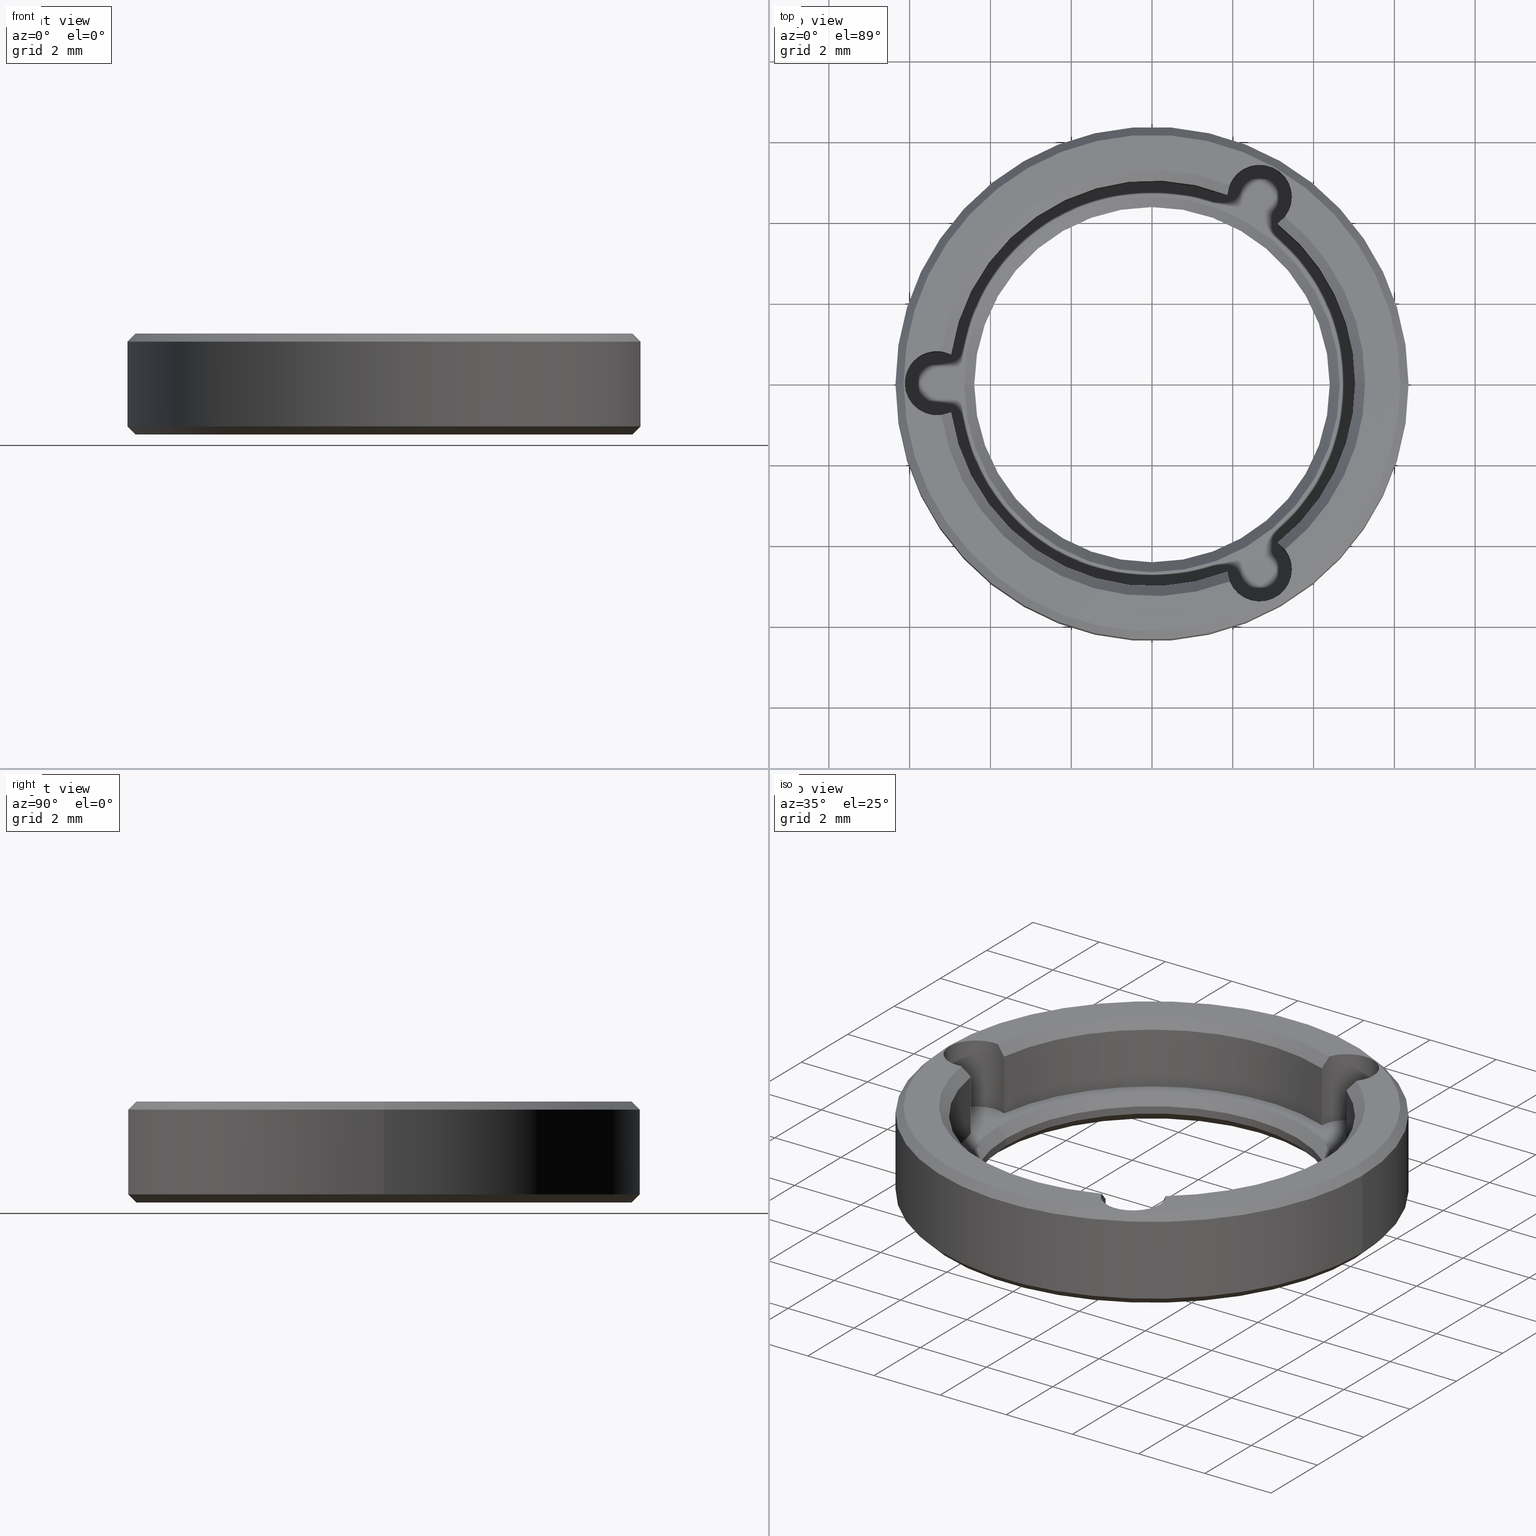
[diagram: canonical four-view strip — front | top / right | iso, engineering-drawing reading convention]
A machine part, canonical four-view strip (front | top / right | iso — engineering-drawing reading convention). The complete STEP part file that produces these views, byte-faithful:
ISO-10303-21;
HEADER;
FILE_DESCRIPTION (( 'STEP AP203' ),
    '1' );
FILE_NAME ('1.6.4.12-ZSJ-05-10.STEP',
    '2024-04-15T05:50:32',
    ( '' ),
    ( '' ),
    'SwSTEP 2.0',
    'SolidWorks 2021',
    '' );
FILE_SCHEMA (( 'CONFIG_CONTROL_DESIGN' ));
ENDSEC;

DATA;
#1 = AXIS2_PLACEMENT_3D ( 'NONE', #67, #347, #643 ) ;
#2 = CONICAL_SURFACE ( 'NONE', #870, 6.349999999999999645, 0.7853981633974482790 ) ;
#3 = EDGE_CURVE ( 'NONE', #253, #282, #865, .T. ) ;
#4 = CARTESIAN_POINT ( 'NONE',  ( 3.462499999999957279, 4.611585275152160435, -1.562741699796954542 ) ) ;
#5 = CARTESIAN_POINT ( 'NONE',  ( 0.000000000000000000, 0.000000000000000000, 0.7000000000000000666 ) ) ;
#6 = EDGE_LOOP ( 'NONE', ( #389, #498, #859, #386, #307, #310, #216, #151, #727 ) ) ;
#7 = DIRECTION ( 'NONE',  ( -0.000000000000000000, -0.000000000000000000, -1.000000000000000000 ) ) ;
#8 = FACE_OUTER_BOUND ( 'NONE', #789, .T. ) ;
#9 = ADVANCED_FACE ( 'NONE', ( #808 ), #455, .T. ) ;
#10 = ORIENTED_EDGE ( 'NONE', *, *, #523, .F. ) ;
#11 = ORIENTED_EDGE ( 'NONE', *, *, #611, .F. ) ;
#12 = CARTESIAN_POINT ( 'NONE',  ( 1.889573237123838956, 4.834514777500105609, 2.415666522135951233 ) ) ;
#13 = DIRECTION ( 'NONE',  ( 1.000000000000000000, 0.000000000000000000, 0.000000000000000000 ) ) ;
#14 = EDGE_LOOP ( 'NONE', ( #421, #575 ) ) ;
#15 = ORIENTED_EDGE ( 'NONE', *, *, #564, .T. ) ;
#16 = CIRCLE ( 'NONE', #531, 6.149999999999998579 ) ;
#17 = VECTOR ( 'NONE', #689, 1000.000000000000114 ) ;
#18 = CARTESIAN_POINT ( 'NONE',  ( -4.400000000000000355, 5.388445916248354013E-16, 0.000000000000000000 ) ) ;
#19 = CARTESIAN_POINT ( 'NONE',  ( 2.662500000000021849, -4.611585275152124019, 0.7000000000000000666 ) ) ;
#20 = ORIENTED_EDGE ( 'NONE', *, *, #68, .F. ) ;
#21 = ORIENTED_EDGE ( 'NONE', *, *, #184, .F. ) ;
#22 = EDGE_CURVE ( 'NONE', #142, #800, #46, .T. ) ;
#23 = DIRECTION ( 'NONE',  ( 0.000000000000000000, 0.000000000000000000, 1.000000000000000000 ) ) ;
#24 = CARTESIAN_POINT ( 'NONE',  ( -4.973356807511737365, 0.7185729365740564090, 2.249999999999998224 ) ) ;
#25 = ORIENTED_EDGE ( 'NONE', *, *, #703, .F. ) ;
#26 = VERTEX_POINT ( 'NONE', #668 ) ;
#27 = CARTESIAN_POINT ( 'NONE',  ( 0.000000000000000000, 0.000000000000000000, 2.249999999999998224 ) ) ;
#28 = VERTEX_POINT ( 'NONE', #768 ) ;
#29 = LINE ( 'NONE', #176, #898 ) ;
#30 = VECTOR ( 'NONE', #586, 1000.000000000000114 ) ;
#31 = CIRCLE ( 'NONE', #533, 0.8000000000000012657 ) ;
#32 = CARTESIAN_POINT ( 'NONE',  ( 0.000000000000000000, 0.000000000000000000, 0.2499999999999976130 ) ) ;
#33 = CC_DESIGN_APPROVAL ( #839, ( #222 ) ) ;
#34 = ORIENTED_EDGE ( 'NONE', *, *, #200, .F. ) ;
#35 = DIRECTION ( 'NONE',  ( 0.000000000000000000, 0.000000000000000000, 1.000000000000000000 ) ) ;
#36 = DIRECTION ( 'NONE',  ( -0.000000000000000000, -0.000000000000000000, 1.000000000000000000 ) ) ;
#37 = EDGE_LOOP ( 'NONE', ( #641, #448, #15, #40 ) ) ;
#38 = EDGE_CURVE ( 'NONE', #85, #185, #377, .T. ) ;
#39 = DIRECTION ( 'NONE',  ( 1.000000000000000000, 0.000000000000000000, 0.000000000000000000 ) ) ;
#40 = ORIENTED_EDGE ( 'NONE', *, *, #760, .F. ) ;
#41 = ADVANCED_FACE ( 'NONE', ( #277 ), #341, .F. ) ;
#42 = DATE_AND_TIME ( #408, #209 ) ;
#43 = AXIS2_PLACEMENT_3D ( 'NONE', #224, #650, #218 ) ;
#44 = DIRECTION ( 'NONE',  ( -0.000000000000000000, -0.000000000000000000, 1.000000000000000000 ) ) ;
#45 = AXIS2_PLACEMENT_3D ( 'NONE', #906, #276, #823 ) ;
#46 = LINE ( 'NONE', #606, #832 ) ;
#47 = ORIENTED_EDGE ( 'NONE', *, *, #345, .T. ) ;
#48 = FACE_OUTER_BOUND ( 'NONE', #365, .T. ) ;
#49 = CARTESIAN_POINT ( 'NONE',  ( -6.149999999999998579, 7.654042494670955634E-16, 0.000000000000000000 ) ) ;
#50 = PERSON_AND_ORGANIZATION ( #691, #872 ) ;
#51 = CARTESIAN_POINT ( 'NONE',  ( 3.462499999999957723, 4.611585275152160435, 0.7000000000000000666 ) ) ;
#52 = DIRECTION ( 'NONE',  ( -0.000000000000000000, -0.000000000000000000, 1.000000000000000000 ) ) ;
#53 = PRODUCT ( '1.6.4.12-ZSJ-05-10', '1.6.4.12-ZSJ-05-10', '', ( #261 ) ) ;
#54 = CYLINDRICAL_SURFACE ( 'NONE', #45, 4.400000000000000355 ) ;
#55 = CARTESIAN_POINT ( 'NONE',  ( 4.649999999999997691, 5.694607616035189911E-16, 0.000000000000000000 ) ) ;
#56 = CIRCLE ( 'NONE', #127, 0.8000000000000008216 ) ;
#57 = CC_DESIGN_PERSON_AND_ORGANIZATION_ASSIGNMENT ( #342, #204, ( #222 ) ) ;
#58 = ORIENTED_EDGE ( 'NONE', *, *, #334, .T. ) ;
#59 = AXIS2_PLACEMENT_3D ( 'NONE', #288, #844, #723 ) ;
#60 = CIRCLE ( 'NONE', #146, 6.149999999999997691 ) ;
#61 = CC_DESIGN_APPROVAL ( #511, ( #536 ) ) ;
#62 = PERSON_AND_ORGANIZATION ( #691, #872 ) ;
#63 = DIRECTION ( 'NONE',  ( -0.000000000000000000, -0.000000000000000000, 1.000000000000000000 ) ) ;
#64 = DIRECTION ( 'NONE',  ( 1.000000000000000000, 1.776356839400250465E-15, 0.000000000000000000 ) ) ;
#65 = ORIENTED_EDGE ( 'NONE', *, *, #205, .T. ) ;
#66 = FACE_OUTER_BOUND ( 'NONE', #37, .T. ) ;
#67 = CARTESIAN_POINT ( 'NONE',  ( 0.000000000000000000, 0.000000000000000000, 2.299999999999998490 ) ) ;
#68 = EDGE_CURVE ( 'NONE', #430, #885, #745, .T. ) ;
#69 = EDGE_CURVE ( 'NONE', #28, #118, #828, .T. ) ;
#70 = DIRECTION ( 'NONE',  ( -0.000000000000000000, 0.000000000000000000, 1.000000000000000000 ) ) ;
#71 = LINE ( 'NONE', #350, #667 ) ;
#72 = ORIENTED_EDGE ( 'NONE', *, *, #75, .F. ) ;
#73 = CIRCLE ( 'NONE', #784, 5.025000000000000355 ) ;
#74 = CIRCLE ( 'NONE', #338, 6.149999999999998579 ) ;
#75 = EDGE_CURVE ( 'NONE', #588, #706, #275, .T. ) ;
#76 = DIRECTION ( 'NONE',  ( 1.000000000000000000, 0.000000000000000000, 0.000000000000000000 ) ) ;
#77 = LINE ( 'NONE', #866, #802 ) ;
#78 = ORIENTED_EDGE ( 'NONE', *, *, #366, .F. ) ;
#79 = LINE ( 'NONE', #83, #744 ) ;
#80 = CARTESIAN_POINT ( 'NONE',  ( 3.108980821301003949, -3.947766869102395937, 2.249999999999998668 ) ) ;
#81 = ORIENTED_EDGE ( 'NONE', *, *, #22, .T. ) ;
#82 = ORIENTED_EDGE ( 'NONE', *, *, #231, .F. ) ;
#83 = CARTESIAN_POINT ( 'NONE',  ( 5.025000000000000355, 0.000000000000000000, 0.7000000000000000666 ) ) ;
#84 = LINE ( 'NONE', #296, #30 ) ;
#85 = VERTEX_POINT ( 'NONE', #193 ) ;
#86 = ORIENTED_EDGE ( 'NONE', *, *, #327, .F. ) ;
#87 = EDGE_CURVE ( 'NONE', #159, #434, #757, .T. ) ;
#88 = CONICAL_SURFACE ( 'NONE', #517, 5.025000000000000355, 0.7853981633974517207 ) ;
#89 = CIRCLE ( 'NONE', #609, 0.8000000000000012657 ) ;
#90 = AXIS2_PLACEMENT_3D ( 'NONE', #731, #535, #241 ) ;
#91 = CARTESIAN_POINT ( 'NONE',  ( 0.000000000000000000, 0.000000000000000000, 2.500000000000000000 ) ) ;
#92 = DIRECTION ( 'NONE',  ( 1.000000000000000000, 0.000000000000000000, 0.000000000000000000 ) ) ;
#93 = ORIENTED_EDGE ( 'NONE', *, *, #69, .T. ) ;
#94 = CYLINDRICAL_SURFACE ( 'NONE', #90, 5.025000000000000355 ) ;
#95 = CARTESIAN_POINT ( 'NONE',  ( 0.000000000000000000, 0.000000000000000000, 2.500000000000000000 ) ) ;
#96 = EDGE_LOOP ( 'NONE', ( #86, #372, #756, #659 ) ) ;
#97 = EDGE_CURVE ( 'NONE', #305, #234, #558, .T. ) ;
#98 = CARTESIAN_POINT ( 'NONE',  ( 0.000000000000000000, 0.000000000000000000, 0.4499999999999981237 ) ) ;
#99 = EDGE_CURVE ( 'NONE', #250, #430, #707, .T. ) ;
#100 = CARTESIAN_POINT ( 'NONE',  ( 0.000000000000000000, 0.000000000000000000, 2.299999999999998490 ) ) ;
#101 = ORIENTED_EDGE ( 'NONE', *, *, #796, .F. ) ;
#102 = CIRCLE ( 'NONE', #265, 5.025000000000000355 ) ;
#103 = EDGE_CURVE ( 'NONE', #85, #509, #138, .T. ) ;
#104 = FACE_BOUND ( 'NONE', #537, .T. ) ;
#105 = AXIS2_PLACEMENT_3D ( 'NONE', #313, #746, #449 ) ;
#106 = ORIENTED_EDGE ( 'NONE', *, *, #796, .T. ) ;
#107 = CARTESIAN_POINT ( 'NONE',  ( 0.000000000000000000, 0.000000000000000000, 0.7000000000000000666 ) ) ;
#108 = CARTESIAN_POINT ( 'NONE',  ( 2.662499999999956568, 4.611585275152160435, -1.562741699796954542 ) ) ;
#109 = VERTEX_POINT ( 'NONE', #198 ) ;
#110 = FACE_OUTER_BOUND ( 'NONE', #139, .T. ) ;
#111 = ORIENTED_EDGE ( 'NONE', *, *, #373, .F. ) ;
#112 = FACE_OUTER_BOUND ( 'NONE', #281, .T. ) ;
#113 = CARTESIAN_POINT ( 'NONE',  ( 0.000000000000000000, 0.000000000000000000, 2.500000000000000000 ) ) ;
#114 = PERSON_AND_ORGANIZATION ( #691, #872 ) ;
#115 = AXIS2_PLACEMENT_3D ( 'NONE', #565, #335, #628 ) ;
#116 = DIRECTION ( 'NONE',  ( 0.7071067811865474617, 8.659560562354932858E-17, -0.7071067811865474617 ) ) ;
#117 = AXIS2_PLACEMENT_3D ( 'NONE', #95, #820, #316 ) ;
#118 = VERTEX_POINT ( 'NONE', #694 ) ;
#119 = AXIS2_PLACEMENT_3D ( 'NONE', #528, #671, #812 ) ;
#120 = LINE ( 'NONE', #270, #17 ) ;
#121 = CARTESIAN_POINT ( 'NONE',  ( 1.864375986210773162, -4.666339805676457786, 2.249999999999997780 ) ) ;
#122 = DATE_AND_TIME ( #398, #459 ) ;
#123 = ADVANCED_FACE ( 'NONE', ( #490 ), #532, .F. ) ;
#124 = CARTESIAN_POINT ( 'NONE',  ( -5.050980134097243557, -0.7565589404753803038, 2.332257555038371510 ) ) ;
#125 = DIRECTION ( 'NONE',  ( 1.000000000000000000, 0.000000000000000000, 0.000000000000000000 ) ) ;
#126 = DIRECTION ( 'NONE',  ( -0.000000000000000000, -0.000000000000000000, -1.000000000000000000 ) ) ;
#127 = AXIS2_PLACEMENT_3D ( 'NONE', #303, #804, #705 ) ;
#128 = CARTESIAN_POINT ( 'NONE',  ( -4.973356807511737365, 0.7185729365740564090, 2.249999999999998224 ) ) ;
#129 = CIRCLE ( 'NONE', #597, 0.8000000000000008216 ) ;
#130 = ORIENTED_EDGE ( 'NONE', *, *, #850, .T. ) ;
#131 = AXIS2_PLACEMENT_3D ( 'NONE', #836, #202, #685 ) ;
#132 = APPROVAL_ROLE ( '' ) ;
#133 = CARTESIAN_POINT ( 'NONE',  ( 0.000000000000000000, 0.000000000000000000, 0.7000000000000000666 ) ) ;
#134 = CARTESIAN_POINT ( 'NONE',  ( 0.000000000000000000, 0.000000000000000000, 2.500000000000000000 ) ) ;
#135 = ADVANCED_FACE ( 'NONE', ( #775 ), #896, .F. ) ;
#136 = ADVANCED_FACE ( 'NONE', ( #480 ), #842, .F. ) ;
#137 = DIRECTION ( 'NONE',  ( 0.000000000000000000, 0.000000000000000000, 1.000000000000000000 ) ) ;
#138 = LINE ( 'NONE', #686, #190 ) ;
#139 = EDGE_LOOP ( 'NONE', ( #285, #235, #863, #243, #65 ) ) ;
#140 = DIRECTION ( 'NONE',  ( 0.000000000000000000, 0.000000000000000000, 1.000000000000000000 ) ) ;
#141 = LINE ( 'NONE', #358, #162 ) ;
#142 = VERTEX_POINT ( 'NONE', #49 ) ;
#143 = ORIENTED_EDGE ( 'NONE', *, *, #168, .T. ) ;
#144 = AXIS2_PLACEMENT_3D ( 'NONE', #5, #512, #797 ) ;
#145 = CIRCLE ( 'NONE', #427, 5.275000000000003908 ) ;
#146 = AXIS2_PLACEMENT_3D ( 'NONE', #247, #35, #300 ) ;
#147 = CC_DESIGN_APPROVAL ( #813, ( #786 ) ) ;
#148 = DIRECTION ( 'NONE',  ( 1.000000000000000000, -8.881784197001252323E-16, 0.000000000000000000 ) ) ;
#149 = CARTESIAN_POINT ( 'NONE',  ( 2.662500000000021849, -4.611585275152124019, 2.500000000000000000 ) ) ;
#150 = VERTEX_POINT ( 'NONE', #407 ) ;
#151 = ORIENTED_EDGE ( 'NONE', *, *, #749, .F. ) ;
#152 = DIRECTION ( 'NONE',  ( 0.000000000000000000, 0.000000000000000000, 1.000000000000000000 ) ) ;
#153 = CC_DESIGN_PERSON_AND_ORGANIZATION_ASSIGNMENT ( #62, #254, ( #536 ) ) ;
#154 = LINE ( 'NONE', #792, #856 ) ;
#155 = ORIENTED_EDGE ( 'NONE', *, *, #260, .T. ) ;
#156 = ORIENTED_EDGE ( 'NONE', *, *, #595, .T. ) ;
#157 = CARTESIAN_POINT ( 'NONE',  ( 1.864375986210706992, 4.666339805676485319, 2.249999999999998224 ) ) ;
#158 = CARTESIAN_POINT ( 'NONE',  ( 0.000000000000000000, 0.000000000000000000, 0.2499999999999976130 ) ) ;
#159 = VERTEX_POINT ( 'NONE', #55 ) ;
#160 = DESIGN_CONTEXT ( 'detailed design', #387, 'design' ) ;
#161 = VERTEX_POINT ( 'NONE', #339 ) ;
#162 = VECTOR ( 'NONE', #720, 1000.000000000000000 ) ;
#163 = AXIS2_PLACEMENT_3D ( 'NONE', #701, #892, #479 ) ;
#164 = VECTOR ( 'NONE', #736, 1000.000000000000000 ) ;
#165 = FACE_OUTER_BOUND ( 'NONE', #497, .T. ) ;
#166 = ORIENTED_EDGE ( 'NONE', *, *, #703, .T. ) ;
#167 = FACE_OUTER_BOUND ( 'NONE', #739, .T. ) ;
#168 = EDGE_CURVE ( 'NONE', #732, #250, #681, .T. ) ;
#169 = ORIENTED_EDGE ( 'NONE', *, *, #735, .F. ) ;
#170 = DIRECTION ( 'NONE',  ( -0.000000000000000000, -0.000000000000000000, -1.000000000000000000 ) ) ;
#171 = DIRECTION ( 'NONE',  ( -0.000000000000000000, -0.000000000000000000, 1.000000000000000000 ) ) ;
#172 = ORIENTED_EDGE ( 'NONE', *, *, #3, .T. ) ;
#173 = EDGE_CURVE ( 'NONE', #250, #899, #236, .T. ) ;
#174 = CARTESIAN_POINT ( 'NONE',  ( 1.864375986210706992, 4.666339805676485319, 2.249999999999998224 ) ) ;
#175 = ORIENTED_EDGE ( 'NONE', *, *, #887, .F. ) ;
#176 = CARTESIAN_POINT ( 'NONE',  ( 6.349999999999999645, 7.776507174585692163E-16, 2.500000000000000000 ) ) ;
#177 = AXIS2_PLACEMENT_3D ( 'NONE', #183, #596, #612 ) ;
#178 = CONICAL_SURFACE ( 'NONE', #884, 4.400000000000000355, 0.7853981633974500554 ) ;
#179 = FACE_OUTER_BOUND ( 'NONE', #763, .T. ) ;
#180 = CARTESIAN_POINT ( 'NONE',  ( 3.293827097955312144, -4.120233979857857776, 2.500000000000000000 ) ) ;
#181 = ADVANCED_BREP_SHAPE_REPRESENTATION ( '1.6.4.12-ZSJ-05-10', ( #567, #399 ), #582 ) ;
#182 = CYLINDRICAL_SURFACE ( 'NONE', #119, 6.349999999999999645 ) ;
#183 = CARTESIAN_POINT ( 'NONE',  ( 0.000000000000000000, 0.000000000000000000, 0.2000000000000013989 ) ) ;
#184 = EDGE_CURVE ( 'NONE', #805, #608, #344, .T. ) ;
#185 = VERTEX_POINT ( 'NONE', #418 ) ;
#186 = DATE_AND_TIME ( #486, #267 ) ;
#187 = CARTESIAN_POINT ( 'NONE',  ( 4.400000000000000355, 0.000000000000000000, 0.2499999999999976130 ) ) ;
#188 = ORIENTED_EDGE ( 'NONE', *, *, #831, .F. ) ;
#189 = DATE_TIME_ROLE ( 'creation_date' ) ;
#190 = VECTOR ( 'NONE', #619, 1000.000000000000000 ) ;
#191 = CARTESIAN_POINT ( 'NONE',  ( -4.973356807511737365, -0.7185729365740577412, 2.249999999999998224 ) ) ;
#192 = CONICAL_SURFACE ( 'NONE', #580, 4.649999999999997691, 0.7853981633974482790 ) ;
#193 = CARTESIAN_POINT ( 'NONE',  ( 1.864375986210773162, -4.666339805676457786, 2.249999999999997780 ) ) ;
#194 = PRODUCT_DEFINITION_SHAPE ( 'NONE', 'NONE',  #222 ) ;
#195 = EDGE_CURVE ( 'NONE', #640, #608, #381, .T. ) ;
#196 = APPLICATION_PROTOCOL_DEFINITION ( 'international standard', 'config_control_design', 1994, #387 ) ;
#197 = CARTESIAN_POINT ( 'NONE',  ( -5.215140845070425968, -0.7924209525739221993, 2.500000000000000000 ) ) ;
#198 = CARTESIAN_POINT ( 'NONE',  ( 4.650000000000003020, 0.000000000000000000, 0.7000000000000000666 ) ) ;
#199 = COORDINATED_UNIVERSAL_TIME_OFFSET ( 8, 0, .AHEAD. ) ;
#200 = EDGE_CURVE ( 'NONE', #118, #85, #73, .T. ) ;
#201 = ORIENTED_EDGE ( 'NONE', *, *, #877, .T. ) ;
#202 = DIRECTION ( 'NONE',  ( 0.000000000000000000, 0.000000000000000000, 1.000000000000000000 ) ) ;
#203 = DIRECTION ( 'NONE',  ( 0.000000000000000000, 0.000000000000000000, 1.000000000000000000 ) ) ;
#204 = PERSON_AND_ORGANIZATION_ROLE ( 'creator' ) ;
#205 = EDGE_CURVE ( 'NONE', #185, #476, #349, .T. ) ;
#206 = CYLINDRICAL_SURFACE ( 'NONE', #649, 0.8000000000000008216 ) ;
#207 = AXIS2_PLACEMENT_3D ( 'NONE', #574, #370, #657 ) ;
#208 = DIRECTION ( 'NONE',  ( -0.000000000000000000, -0.000000000000000000, 1.000000000000000000 ) ) ;
#209 = LOCAL_TIME ( 13, 50, 32.00000000000000000, #416 ) ;
#210 = DIRECTION ( 'NONE',  ( -1.000000000000000000, 0.000000000000000000, 0.000000000000000000 ) ) ;
#211 = CARTESIAN_POINT ( 'NONE',  ( 4.400000000000000355, 0.000000000000000000, 0.000000000000000000 ) ) ;
#212 = ADVANCED_FACE ( 'NONE', ( #8 ), #88, .F. ) ;
#213 = CARTESIAN_POINT ( 'NONE',  ( 0.000000000000000000, 0.000000000000000000, 2.500000000000000000 ) ) ;
#214 = CARTESIAN_POINT ( 'NONE',  ( 0.000000000000000000, 0.000000000000000000, 2.249999999999998224 ) ) ;
#215 = VERTEX_POINT ( 'NONE', #426 ) ;
#216 = ORIENTED_EDGE ( 'NONE', *, *, #887, .T. ) ;
#217 = CARTESIAN_POINT ( 'NONE',  ( 3.108980821300948882, 3.947766869102439458, 2.249999999999998224 ) ) ;
#218 = DIRECTION ( 'NONE',  ( 1.000000000000000000, 0.000000000000000000, 0.000000000000000000 ) ) ;
#219 = EDGE_LOOP ( 'NONE', ( #443, #867, #415, #713 ) ) ;
#220 = ORIENTED_EDGE ( 'NONE', *, *, #431, .F. ) ;
#221 = CIRCLE ( 'NONE', #534, 4.400000000000000355 ) ;
#222 = PRODUCT_DEFINITION ( 'δ֪', '', #786, #160 ) ;
#223 = CARTESIAN_POINT ( 'NONE',  ( 0.000000000000000000, 0.000000000000000000, 0.7000000000000000666 ) ) ;
#224 = CARTESIAN_POINT ( 'NONE',  ( 0.000000000000000000, 0.000000000000000000, 2.500000000000000000 ) ) ;
#225 = EDGE_LOOP ( 'NONE', ( #793, #34, #10, #821 ) ) ;
#226 = EDGE_LOOP ( 'NONE', ( #637, #435 ) ) ;
#227 = LINE ( 'NONE', #4, #293 ) ;
#228 = CYLINDRICAL_SURFACE ( 'NONE', #144, 5.025000000000000355 ) ;
#229 = ORIENTED_EDGE ( 'NONE', *, *, #173, .F. ) ;
#230 = VERTEX_POINT ( 'NONE', #354 ) ;
#231 = EDGE_CURVE ( 'NONE', #717, #282, #77, .T. ) ;
#232 = CARTESIAN_POINT ( 'NONE',  ( 0.000000000000000000, 0.000000000000000000, 0.000000000000000000 ) ) ;
#233 = EDGE_CURVE ( 'NONE', #321, #142, #16, .T. ) ;
#234 = VERTEX_POINT ( 'NONE', #496 ) ;
#235 = ORIENTED_EDGE ( 'NONE', *, *, #749, .T. ) ;
#236 = CIRCLE ( 'NONE', #442, 5.275000000000003908 ) ;
#237 = LINE ( 'NONE', #664, #278 ) ;
#238 = PLANE ( 'NONE',  #501 ) ;
#239 = ORIENTED_EDGE ( 'NONE', *, *, #877, .F. ) ;
#240 = ADVANCED_FACE ( 'NONE', ( #284 ), #560, .F. ) ;
#241 = DIRECTION ( 'NONE',  ( 1.000000000000000000, 0.000000000000000000, 0.000000000000000000 ) ) ;
#242 = CARTESIAN_POINT ( 'NONE',  ( 3.462499999999957723, 4.611585275152160435, 2.500000000000000000 ) ) ;
#243 = ORIENTED_EDGE ( 'NONE', *, *, #38, .T. ) ;
#244 = LINE ( 'NONE', #458, #164 ) ;
#245 = CYLINDRICAL_SURFACE ( 'NONE', #633, 0.8000000000000012657 ) ;
#246 = ORIENTED_EDGE ( 'NONE', *, *, #466, .T. ) ;
#247 = CARTESIAN_POINT ( 'NONE',  ( 0.000000000000000000, 0.000000000000000000, 2.500000000000000000 ) ) ;
#248 = AXIS2_PLACEMENT_3D ( 'NONE', #615, #63, #544 ) ;
#249 = EDGE_CURVE ( 'NONE', #109, #824, #724, .T. ) ;
#250 = VERTEX_POINT ( 'NONE', #711 ) ;
#251 = CARTESIAN_POINT ( 'NONE',  ( 4.400000000000000355, 0.000000000000000000, 0.4499999999999981237 ) ) ;
#252 = CC_DESIGN_SECURITY_CLASSIFICATION ( #536, ( #786 ) ) ;
#253 = VERTEX_POINT ( 'NONE', #858 ) ;
#254 = PERSON_AND_ORGANIZATION_ROLE ( 'classification_officer' ) ;
#255 = DIRECTION ( 'NONE',  ( 1.000000000000000000, 0.000000000000000000, 0.000000000000000000 ) ) ;
#256 = ORIENTED_EDGE ( 'NONE', *, *, #693, .T. ) ;
#257 = CALENDAR_DATE ( 2024, 15, 4 ) ;
#258 = CARTESIAN_POINT ( 'NONE',  ( 2.662500000000021849, -4.611585275152124019, -1.562741699796954542 ) ) ;
#259 = CARTESIAN_POINT ( 'NONE',  ( 0.000000000000000000, 0.000000000000000000, 2.249999999999998224 ) ) ;
#260 = EDGE_CURVE ( 'NONE', #899, #253, #869, .T. ) ;
#261 = MECHANICAL_CONTEXT ( 'NONE', #393, 'mechanical' ) ;
#262 = AXIS2_PLACEMENT_3D ( 'NONE', #113, #380, #395 ) ;
#263 = VECTOR ( 'NONE', #733, 1000.000000000000000 ) ;
#264 = CARTESIAN_POINT ( 'NONE',  ( 1.864375986210773162, -4.666339805676459562, 0.7000000000000000666 ) ) ;
#265 = AXIS2_PLACEMENT_3D ( 'NONE', #568, #137, #76 ) ;
#266 = DIRECTION ( 'NONE',  ( 0.000000000000000000, 0.000000000000000000, 1.000000000000000000 ) ) ;
#267 = LOCAL_TIME ( 13, 50, 32.00000000000000000, #199 ) ;
#268 = EDGE_CURVE ( 'NONE', #717, #782, #129, .T. ) ;
#269 = PERSON_AND_ORGANIZATION ( #691, #872 ) ;
#270 = CARTESIAN_POINT ( 'NONE',  ( 6.349999999999999645, 0.000000000000000000, 0.2000000000000013989 ) ) ;
#271 = CARTESIAN_POINT ( 'NONE',  ( 3.180689328960634388, 3.995997639901172960, 2.332257555038522057 ) ) ;
#272 = ORIENTED_EDGE ( 'NONE', *, *, #231, .T. ) ;
#273 = PERSON_AND_ORGANIZATION_ROLE ( 'design_owner' ) ;
#274 = CARTESIAN_POINT ( 'NONE',  ( 4.649999999999997691, 5.694607616035189911E-16, 0.000000000000000000 ) ) ;
#275 = LINE ( 'NONE', #211, #410 ) ;
#276 = DIRECTION ( 'NONE',  ( -0.000000000000000000, -0.000000000000000000, 1.000000000000000000 ) ) ;
#277 = FACE_OUTER_BOUND ( 'NONE', #291, .T. ) ;
#278 = VECTOR ( 'NONE', #878, 1000.000000000000000 ) ;
#279 = FACE_OUTER_BOUND ( 'NONE', #428, .T. ) ;
#280 = LINE ( 'NONE', #569, #263 ) ;
#281 = EDGE_LOOP ( 'NONE', ( #503, #514 ) ) ;
#282 = VERTEX_POINT ( 'NONE', #80 ) ;
#283 = CARTESIAN_POINT ( 'NONE',  ( 2.662500000000021849, -4.611585275152124019, 0.7000000000000000666 ) ) ;
#284 = FACE_OUTER_BOUND ( 'NONE', #375, .T. ) ;
#285 = ORIENTED_EDGE ( 'NONE', *, *, #825, .F. ) ;
#286 = EDGE_CURVE ( 'NONE', #150, #899, #154, .T. ) ;
#287 = B_SPLINE_CURVE_WITH_KNOTS ( 'NONE', 3,
 ( #197, #827, #124, #191 ),
 .UNSPECIFIED., .F., .F.,
 ( 4, 4 ),
 ( 2.810610714474245848E-07, 0.0003558271906842286813 ),
 .UNSPECIFIED. ) ;
#288 = CARTESIAN_POINT ( 'NONE',  ( 0.000000000000000000, 0.000000000000000000, 0.7000000000000000666 ) ) ;
#289 = CARTESIAN_POINT ( 'NONE',  ( 0.000000000000000000, 0.000000000000000000, 2.249999999999998224 ) ) ;
#290 = ORIENTED_EDGE ( 'NONE', *, *, #603, .T. ) ;
#291 = EDGE_LOOP ( 'NONE', ( #880, #747, #571, #645 ) ) ;
#292 = CONICAL_SURFACE ( 'NONE', #816, 5.025000000000000355, 0.7853981633974517207 ) ;
#293 = VECTOR ( 'NONE', #70, 1000.000000000000000 ) ;
#294 = CIRCLE ( 'NONE', #563, 0.8000000000000008216 ) ;
#295 = DIRECTION ( 'NONE',  ( -0.000000000000000000, -0.000000000000000000, 1.000000000000000000 ) ) ;
#296 = CARTESIAN_POINT ( 'NONE',  ( 6.149999999999997691, 7.531577814756219106E-16, 2.500000000000000000 ) ) ;
#297 = ORIENTED_EDGE ( 'NONE', *, *, #798, .F. ) ;
#298 = ORIENTED_EDGE ( 'NONE', *, *, #728, .F. ) ;
#299 = EDGE_CURVE ( 'NONE', #305, #317, #141, .T. ) ;
#300 = DIRECTION ( 'NONE',  ( 1.000000000000000000, 0.000000000000000000, 0.000000000000000000 ) ) ;
#301 = EDGE_CURVE ( 'NONE', #652, #640, #84, .T. ) ;
#302 = EDGE_LOOP ( 'NONE', ( #587, #78, #543, #779 ) ) ;
#303 = CARTESIAN_POINT ( 'NONE',  ( 2.662499999999956568, 4.611585275152160435, 0.7000000000000000666 ) ) ;
#304 = ORIENTED_EDGE ( 'NONE', *, *, #764, .F. ) ;
#305 = VERTEX_POINT ( 'NONE', #24 ) ;
#306 = CARTESIAN_POINT ( 'NONE',  ( 5.275000000000003908, 0.000000000000000000, 2.500000000000000000 ) ) ;
#307 = ORIENTED_EDGE ( 'NONE', *, *, #728, .T. ) ;
#308 = CARTESIAN_POINT ( 'NONE',  ( 0.000000000000000000, 0.000000000000000000, 0.000000000000000000 ) ) ;
#309 = UNCERTAINTY_MEASURE_WITH_UNIT (LENGTH_MEASURE( 1.000000000000000082E-05 ), #604, 'distance_accuracy_value', 'NONE');
#310 = ORIENTED_EDGE ( 'NONE', *, *, #595, .F. ) ;
#311 = AXIS2_PLACEMENT_3D ( 'NONE', #259, #766, #125 ) ;
#312 = AXIS2_PLACEMENT_3D ( 'NONE', #748, #390, #39 ) ;
#313 = CARTESIAN_POINT ( 'NONE',  ( 2.662500000000021849, -4.611585275152124019, -1.562741699796954542 ) ) ;
#314 = DIRECTION ( 'NONE',  ( 0.7071067811865487940, 0.000000000000000000, 0.7071067811865463515 ) ) ;
#315 = ORIENTED_EDGE ( 'NONE', *, *, #715, .T. ) ;
#316 = DIRECTION ( 'NONE',  ( -1.000000000000000000, 0.000000000000000000, 0.000000000000000000 ) ) ;
#317 = VERTEX_POINT ( 'NONE', #441 ) ;
#318 = ADVANCED_FACE ( 'NONE', ( #862 ), #228, .F. ) ;
#319 = DIRECTION ( 'NONE',  ( 0.000000000000000000, 0.000000000000000000, 1.000000000000000000 ) ) ;
#320 = LINE ( 'NONE', #251, #519 ) ;
#321 = VERTEX_POINT ( 'NONE', #516 ) ;
#322 = AXIS2_PLACEMENT_3D ( 'NONE', #149, #502, #579 ) ;
#323 = DATE_AND_TIME ( #617, #429 ) ;
#324 = AXIS2_PLACEMENT_3D ( 'NONE', #213, #352, #148 ) ;
#325 = CARTESIAN_POINT ( 'NONE',  ( -5.325000000000000178, -6.521244205459656303E-16, -1.562741699796954542 ) ) ;
#326 = DIRECTION ( 'NONE',  ( -0.7071067811865474617, 8.659560562354932858E-17, 0.7071067811865474617 ) ) ;
#327 = EDGE_CURVE ( 'NONE', #588, #230, #578, .T. ) ;
#328 = ORIENTED_EDGE ( 'NONE', *, *, #764, .T. ) ;
#329 = EDGE_CURVE ( 'NONE', #161, #576, #56, .T. ) ;
#330 = DIRECTION ( 'NONE',  ( 1.000000000000000000, 0.000000000000000000, 0.000000000000000000 ) ) ;
#331 = CARTESIAN_POINT ( 'NONE',  ( 0.000000000000000000, 0.000000000000000000, 0.4499999999999981237 ) ) ;
#332 = DATE_AND_TIME ( #257, #566 ) ;
#333 = DIRECTION ( 'NONE',  ( 0.000000000000000000, 0.000000000000000000, 1.000000000000000000 ) ) ;
#334 = EDGE_CURVE ( 'NONE', #230, #434, #71, .T. ) ;
#335 = DIRECTION ( 'NONE',  ( 0.000000000000000000, 0.000000000000000000, 1.000000000000000000 ) ) ;
#336 = CIRCLE ( 'NONE', #456, 6.349999999999999645 ) ;
#337 = CARTESIAN_POINT ( 'NONE',  ( 6.349999999999999645, 7.776507174585692163E-16, 0.2000000000000013989 ) ) ;
#338 = AXIS2_PLACEMENT_3D ( 'NONE', #506, #7, #846 ) ;
#339 = CARTESIAN_POINT ( 'NONE',  ( 1.864375986210706992, 4.666339805676486208, 0.7000000000000000666 ) ) ;
#340 = VECTOR ( 'NONE', #357, 1000.000000000000000 ) ;
#341 = CONICAL_SURFACE ( 'NONE', #783, 5.025000000000000355, 0.7853981633974517207 ) ;
#342 = PERSON_AND_ORGANIZATION ( #691, #872 ) ;
#343 = DIRECTION ( 'NONE',  ( 1.000000000000000000, 8.881784197001248379E-16, 0.000000000000000000 ) ) ;
#344 = LINE ( 'NONE', #616, #425 ) ;
#345 = EDGE_CURVE ( 'NONE', #732, #902, #280, .T. ) ;
#346 = CARTESIAN_POINT ( 'NONE',  ( 3.462500000000023004, -4.611585275152124019, 2.500000000000000000 ) ) ;
#347 = DIRECTION ( 'NONE',  ( 0.000000000000000000, 0.000000000000000000, -1.000000000000000000 ) ) ;
#348 = FACE_OUTER_BOUND ( 'NONE', #96, .T. ) ;
#349 = CIRCLE ( 'NONE', #322, 0.8000000000000012657 ) ;
#350 = CARTESIAN_POINT ( 'NONE',  ( -4.649999999999997691, 0.000000000000000000, 0.000000000000000000 ) ) ;
#351 = ORIENTED_EDGE ( 'NONE', *, *, #195, .F. ) ;
#352 = DIRECTION ( 'NONE',  ( -0.000000000000000000, -0.000000000000000000, -1.000000000000000000 ) ) ;
#353 = ADVANCED_FACE ( 'NONE', ( #112, #394 ), #238, .F. ) ;
#354 = CARTESIAN_POINT ( 'NONE',  ( -4.400000000000000355, 5.388445916248354013E-16, 0.2499999999999976130 ) ) ;
#355 = VERTEX_POINT ( 'NONE', #174 ) ;
#356 = ORIENTED_EDGE ( 'NONE', *, *, #68, .T. ) ;
#357 = DIRECTION ( 'NONE',  ( -0.7071067811865487940, 8.659560562354950115E-17, 0.7071067811865463515 ) ) ;
#358 = CARTESIAN_POINT ( 'NONE',  ( -4.973356807511738253, 0.7185729365740571861, 1.600000000000000311 ) ) ;
#359 = ADVANCED_FACE ( 'NONE', ( #889 ), #648, .T. ) ;
#360 = ORIENTED_EDGE ( 'NONE', *, *, #634, .F. ) ;
#361 = ORIENTED_EDGE ( 'NONE', *, *, #345, .F. ) ;
#362 = CYLINDRICAL_SURFACE ( 'NONE', #670, 6.349999999999999645 ) ;
#363 = DIRECTION ( 'NONE',  ( -0.000000000000000000, -0.000000000000000000, -1.000000000000000000 ) ) ;
#364 = AXIS2_PLACEMENT_3D ( 'NONE', #559, #266, #545 ) ;
#365 = EDGE_LOOP ( 'NONE', ( #298, #106, #246, #392 ) ) ;
#366 = EDGE_CURVE ( 'NONE', #706, #26, #621, .T. ) ;
#367 = AXIS2_PLACEMENT_3D ( 'NONE', #133, #833, #406 ) ;
#368 = AXIS2_PLACEMENT_3D ( 'NONE', #642, #577, #436 ) ;
#369 = DIRECTION ( 'NONE',  ( -0.000000000000000000, -0.000000000000000000, -1.000000000000000000 ) ) ;
#370 = DIRECTION ( 'NONE',  ( -0.000000000000000000, -0.000000000000000000, -1.000000000000000000 ) ) ;
#371 = ORIENTED_EDGE ( 'NONE', *, *, #69, .F. ) ;
#372 = ORIENTED_EDGE ( 'NONE', *, *, #611, .T. ) ;
#373 = EDGE_CURVE ( 'NONE', #590, #800, #336, .T. ) ;
#374 =( NAMED_UNIT ( * ) PLANE_ANGLE_UNIT ( ) SI_UNIT ( $, .RADIAN. ) );
#375 = EDGE_LOOP ( 'NONE', ( #11, #677, #58, #722 ) ) ;
#376 = FACE_OUTER_BOUND ( 'NONE', #6, .T. ) ;
#377 = B_SPLINE_CURVE_WITH_KNOTS ( 'NONE', 3,
 ( #121, #631, #762, #845 ),
 .UNSPECIFIED., .F., .F.,
 ( 4, 4 ),
 ( 2.881602634184302082E-07, 0.0003558342898762007021 ),
 .UNSPECIFIED. ) ;
#378 = DIRECTION ( 'NONE',  ( 0.000000000000000000, 0.000000000000000000, 1.000000000000000000 ) ) ;
#379 = DIRECTION ( 'NONE',  ( 0.000000000000000000, 0.000000000000000000, -1.000000000000000000 ) ) ;
#380 = DIRECTION ( 'NONE',  ( 0.000000000000000000, 0.000000000000000000, -1.000000000000000000 ) ) ;
#381 = CIRCLE ( 'NONE', #1, 6.349999999999999645 ) ;
#382 = CIRCLE ( 'NONE', #708, 4.649999999999997691 ) ;
#383 = APPROVAL_PERSON_ORGANIZATION ( #835, #813, #132 ) ;
#384 = CARTESIAN_POINT ( 'NONE',  ( 0.000000000000000000, 0.000000000000000000, 0.2000000000000013989 ) ) ;
#385 = CC_DESIGN_PERSON_AND_ORGANIZATION_ASSIGNMENT ( #114, #273, ( #53 ) ) ;
#386 = ORIENTED_EDGE ( 'NONE', *, *, #329, .F. ) ;
#387 = APPLICATION_CONTEXT ( 'configuration controlled 3d designs of mechanical parts and assemblies' ) ;
#388 = DIRECTION ( 'NONE',  ( 1.000000000000000000, 0.000000000000000000, 0.000000000000000000 ) ) ;
#389 = ORIENTED_EDGE ( 'NONE', *, *, #629, .T. ) ;
#390 = DIRECTION ( 'NONE',  ( -0.000000000000000000, -0.000000000000000000, 1.000000000000000000 ) ) ;
#391 = ORIENTED_EDGE ( 'NONE', *, *, #373, .T. ) ;
#392 = ORIENTED_EDGE ( 'NONE', *, *, #299, .T. ) ;
#393 = APPLICATION_CONTEXT ( 'configuration controlled 3d designs of mechanical parts and assemblies' ) ;
#394 = FACE_BOUND ( 'NONE', #226, .T. ) ;
#395 = DIRECTION ( 'NONE',  ( -1.000000000000000000, 0.000000000000000000, 0.000000000000000000 ) ) ;
#396 = ADVANCED_FACE ( 'NONE', ( #605 ), #292, .F. ) ;
#397 = EDGE_CURVE ( 'NONE', #608, #640, #695, .T. ) ;
#398 = CALENDAR_DATE ( 2024, 15, 4 ) ;
#399 = AXIS2_PLACEMENT_3D ( 'NONE', #515, #801, #553 ) ;
#400 = DIRECTION ( 'NONE',  ( 0.000000000000000000, 0.000000000000000000, 1.000000000000000000 ) ) ;
#401 = ORIENTED_EDGE ( 'NONE', *, *, #299, .F. ) ;
#402 = PERSON_AND_ORGANIZATION_ROLE ( 'creator' ) ;
#403 = EDGE_CURVE ( 'NONE', #230, #588, #882, .T. ) ;
#404 = DIRECTION ( 'NONE',  ( -0.000000000000000000, -0.000000000000000000, -1.000000000000000000 ) ) ;
#405 = CARTESIAN_POINT ( 'NONE',  ( 2.662499999999956568, 4.611585275152160435, 2.500000000000000000 ) ) ;
#406 = DIRECTION ( 'NONE',  ( 1.000000000000000000, 0.000000000000000000, 0.000000000000000000 ) ) ;
#407 = CARTESIAN_POINT ( 'NONE',  ( 5.025000000000000355, 0.000000000000000000, 2.249999999999998224 ) ) ;
#408 = CALENDAR_DATE ( 2024, 15, 4 ) ;
#409 = AXIS2_PLACEMENT_3D ( 'NONE', #405, #907, #690 ) ;
#410 = VECTOR ( 'NONE', #52, 1000.000000000000000 ) ;
#411 = DIRECTION ( 'NONE',  ( 0.000000000000000000, -0.000000000000000000, 1.000000000000000000 ) ) ;
#412 = CIRCLE ( 'NONE', #131, 5.025000000000000355 ) ;
#413 = CARTESIAN_POINT ( 'NONE',  ( 3.293827097955254857, 4.120233979857904849, 2.500000000000000000 ) ) ;
#414 = ADVANCED_FACE ( 'NONE', ( #450 ), #672, .F. ) ;
#415 = ORIENTED_EDGE ( 'NONE', *, *, #735, .T. ) ;
#416 = COORDINATED_UNIVERSAL_TIME_OFFSET ( 8, 0, .AHEAD. ) ;
#417 = DIRECTION ( 'NONE',  ( 0.000000000000000000, 0.000000000000000000, 1.000000000000000000 ) ) ;
#418 = CARTESIAN_POINT ( 'NONE',  ( 1.921313747115156234, -4.912654932431785859, 2.500000000000000000 ) ) ;
#419 = DIRECTION ( 'NONE',  ( 1.000000000000000000, 0.000000000000000000, 0.000000000000000000 ) ) ;
#420 = DIRECTION ( 'NONE',  ( 1.000000000000000000, 0.000000000000000000, 0.000000000000000000 ) ) ;
#421 = ORIENTED_EDGE ( 'NONE', *, *, #831, .T. ) ;
#422 = ADVANCED_FACE ( 'NONE', ( #815 ), #245, .F. ) ;
#423 = ADVANCED_FACE ( 'NONE', ( #167 ), #541, .F. ) ;
#424 = CARTESIAN_POINT ( 'NONE',  ( -6.349999999999999645, 0.000000000000000000, 2.500000000000000000 ) ) ;
#425 = VECTOR ( 'NONE', #893, 1000.000000000000114 ) ;
#426 = CARTESIAN_POINT ( 'NONE',  ( 5.025000000000000355, 0.000000000000000000, 0.7000000000000000666 ) ) ;
#427 = AXIS2_PLACEMENT_3D ( 'NONE', #483, #404, #618 ) ;
#428 = EDGE_LOOP ( 'NONE', ( #462, #130, #391, #169 ) ) ;
#429 = LOCAL_TIME ( 13, 50, 32.00000000000000000, #467 ) ;
#430 = VERTEX_POINT ( 'NONE', #242 ) ;
#431 = EDGE_CURVE ( 'NONE', #706, #109, #320, .T. ) ;
#432 = CARTESIAN_POINT ( 'NONE',  ( -4.400000000000000355, 5.388445916248354013E-16, 0.4499999999999981237 ) ) ;
#433 = CARTESIAN_POINT ( 'NONE',  ( 0.000000000000000000, 0.000000000000000000, 0.7000000000000000666 ) ) ;
#434 = VERTEX_POINT ( 'NONE', #453 ) ;
#435 = ORIENTED_EDGE ( 'NONE', *, *, #87, .T. ) ;
#436 = DIRECTION ( 'NONE',  ( 1.000000000000000000, 0.000000000000000000, 0.000000000000000000 ) ) ;
#437 = DIRECTION ( 'NONE',  ( 0.7071067811865500152, 0.000000000000000000, 0.7071067811865451302 ) ) ;
#438 = ORIENTED_EDGE ( 'NONE', *, *, #200, .T. ) ;
#439 = ORIENTED_EDGE ( 'NONE', *, *, #397, .F. ) ;
#440 = DIRECTION ( 'NONE',  ( -0.000000000000000000, -0.000000000000000000, 1.000000000000000000 ) ) ;
#441 = CARTESIAN_POINT ( 'NONE',  ( -4.973356807511738253, 0.7185729365740570751, 0.7000000000000000666 ) ) ;
#442 = AXIS2_PLACEMENT_3D ( 'NONE', #134, #699, #64 ) ;
#443 = ORIENTED_EDGE ( 'NONE', *, *, #850, .F. ) ;
#444 = AXIS2_PLACEMENT_3D ( 'NONE', #223, #23, #491 ) ;
#445 = ADVANCED_FACE ( 'NONE', ( #741 ), #696, .T. ) ;
#446 = CARTESIAN_POINT ( 'NONE',  ( -4.650000000000003020, 5.694607616035195828E-16, 0.7000000000000000666 ) ) ;
#447 = DIRECTION ( 'NONE',  ( 1.000000000000000000, 0.000000000000000000, 0.000000000000000000 ) ) ;
#448 = ORIENTED_EDGE ( 'NONE', *, *, #233, .F. ) ;
#449 = DIRECTION ( 'NONE',  ( 1.000000000000000000, 0.000000000000000000, 0.000000000000000000 ) ) ;
#450 = FACE_OUTER_BOUND ( 'NONE', #598, .T. ) ;
#451 = ORIENTED_EDGE ( 'NONE', *, *, #493, .T. ) ;
#452 = ADVANCED_FACE ( 'NONE', ( #104, #376 ), #607, .T. ) ;
#453 = CARTESIAN_POINT ( 'NONE',  ( -4.649999999999997691, 0.000000000000000000, 0.000000000000000000 ) ) ;
#454 = ORIENTED_EDGE ( 'NONE', *, *, #249, .F. ) ;
#455 = CONICAL_SURFACE ( 'NONE', #262, 6.149999999999997691, 0.7853981633974504994 ) ;
#456 = AXIS2_PLACEMENT_3D ( 'NONE', #384, #36, #525 ) ;
#457 = VECTOR ( 'NONE', #116, 1000.000000000000114 ) ;
#458 = CARTESIAN_POINT ( 'NONE',  ( 3.462500000000023004, -4.611585275152124019, -1.562741699796954542 ) ) ;
#459 = LOCAL_TIME ( 13, 50, 32.00000000000000000, #477 ) ;
#460 = ORIENTED_EDGE ( 'NONE', *, *, #184, .T. ) ;
#461 = DIRECTION ( 'NONE',  ( -0.000000000000000000, -0.000000000000000000, -1.000000000000000000 ) ) ;
#462 = ORIENTED_EDGE ( 'NONE', *, *, #397, .T. ) ;
#463 = DIRECTION ( 'NONE',  ( 0.000000000000000000, 0.000000000000000000, 1.000000000000000000 ) ) ;
#464 = ADVANCED_FACE ( 'NONE', ( #179 ), #663, .F. ) ;
#465 = ORIENTED_EDGE ( 'NONE', *, *, #620, .T. ) ;
#466 = EDGE_CURVE ( 'NONE', #355, #305, #622, .T. ) ;
#467 = COORDINATED_UNIVERSAL_TIME_OFFSET ( 8, 0, .AHEAD. ) ;
#468 = CARTESIAN_POINT ( 'NONE',  ( 2.662500000000021849, -4.611585275152124019, 2.500000000000000000 ) ) ;
#469 = EDGE_LOOP ( 'NONE', ( #673, #81, #111, #769 ) ) ;
#470 = ADVANCED_FACE ( 'NONE', ( #840 ), #206, .F. ) ;
#471 = AXIS2_PLACEMENT_3D ( 'NONE', #551, #625, #484 ) ;
#472 = CIRCLE ( 'NONE', #367, 5.025000000000000355 ) ;
#473 = APPROVAL_PERSON_ORGANIZATION ( #50, #839, #838 ) ;
#474 = CARTESIAN_POINT ( 'NONE',  ( 0.000000000000000000, 0.000000000000000000, 0.000000000000000000 ) ) ;
#475 = DIRECTION ( 'NONE',  ( 1.000000000000000000, 0.000000000000000000, 0.000000000000000000 ) ) ;
#476 = VERTEX_POINT ( 'NONE', #346 ) ;
#477 = COORDINATED_UNIVERSAL_TIME_OFFSET ( 8, 0, .AHEAD. ) ;
#478 = ORIENTED_EDGE ( 'NONE', *, *, #603, .F. ) ;
#479 = DIRECTION ( 'NONE',  ( 1.000000000000000000, 0.000000000000000000, 0.000000000000000000 ) ) ;
#480 = FACE_OUTER_BOUND ( 'NONE', #225, .T. ) ;
#481 = APPROVAL_STATUS ( 'not_yet_approved' ) ;
#482 = ADVANCED_FACE ( 'NONE', ( #48 ), #698, .F. ) ;
#483 = CARTESIAN_POINT ( 'NONE',  ( 0.000000000000000000, 0.000000000000000000, 2.500000000000000000 ) ) ;
#484 = DIRECTION ( 'NONE',  ( 1.000000000000000000, 0.000000000000000000, 0.000000000000000000 ) ) ;
#485 = EDGE_LOOP ( 'NONE', ( #156, #401, #658, #166, #750, #371 ) ) ;
#486 = CALENDAR_DATE ( 2024, 15, 4 ) ;
#487 = CIRCLE ( 'NONE', #59, 4.650000000000003020 ) ;
#488 = CARTESIAN_POINT ( 'NONE',  ( 0.000000000000000000, 0.000000000000000000, 0.2000000000000013989 ) ) ;
#489 = AXIS2_PLACEMENT_3D ( 'NONE', #520, #806, #881 ) ;
#490 = FACE_OUTER_BOUND ( 'NONE', #302, .T. ) ;
#491 = DIRECTION ( 'NONE',  ( 1.000000000000000000, 0.000000000000000000, 0.000000000000000000 ) ) ;
#492 = CARTESIAN_POINT ( 'NONE',  ( -5.131599230848291171, 0.7808389630895629097, 2.415666522135949901 ) ) ;
#493 = EDGE_CURVE ( 'NONE', #576, #902, #818, .T. ) ;
#494 = ADVANCED_FACE ( 'NONE', ( #66 ), #2, .T. ) ;
#495 = CARTESIAN_POINT ( 'NONE',  ( 3.108980821301005726, -3.947766869102396825, 0.7000000000000000666 ) ) ;
#496 = CARTESIAN_POINT ( 'NONE',  ( -5.215140845070425968, 0.7924209525739209781, 2.500000000000000000 ) ) ;
#497 = EDGE_LOOP ( 'NONE', ( #438, #854, #175, #93 ) ) ;
#498 = ORIENTED_EDGE ( 'NONE', *, *, #527, .T. ) ;
#499 = EDGE_CURVE ( 'NONE', #185, #743, #145, .T. ) ;
#500 = FACE_OUTER_BOUND ( 'NONE', #873, .T. ) ;
#501 = AXIS2_PLACEMENT_3D ( 'NONE', #308, #463, #538 ) ;
#502 = DIRECTION ( 'NONE',  ( 0.000000000000000000, 0.000000000000000000, 1.000000000000000000 ) ) ;
#503 = ORIENTED_EDGE ( 'NONE', *, *, #233, .T. ) ;
#504 = VECTOR ( 'NONE', #295, 1000.000000000000000 ) ;
#505 = ORIENTED_EDGE ( 'NONE', *, *, #301, .F. ) ;
#506 = CARTESIAN_POINT ( 'NONE',  ( 0.000000000000000000, 0.000000000000000000, 0.000000000000000000 ) ) ;
#507 = DIRECTION ( 'NONE',  ( -0.000000000000000000, -0.000000000000000000, -1.000000000000000000 ) ) ;
#508 = ORIENTED_EDGE ( 'NONE', *, *, #268, .T. ) ;
#509 = VERTEX_POINT ( 'NONE', #264 ) ;
#510 = CARTESIAN_POINT ( 'NONE',  ( 1.921313747115087178, 4.912654932431814281, 2.500000000000000000 ) ) ;
#511 = APPROVAL ( #481, 'δָ��' ) ;
#512 = DIRECTION ( 'NONE',  ( -0.000000000000000000, -0.000000000000000000, 1.000000000000000000 ) ) ;
#513 = ORIENTED_EDGE ( 'NONE', *, *, #527, .F. ) ;
#514 = ORIENTED_EDGE ( 'NONE', *, *, #665, .T. ) ;
#515 = CARTESIAN_POINT ( 'NONE',  ( 0.000000000000000000, 0.000000000000000000, 0.000000000000000000 ) ) ;
#516 = CARTESIAN_POINT ( 'NONE',  ( 6.149999999999998579, 0.000000000000000000, 0.000000000000000000 ) ) ;
#517 = AXIS2_PLACEMENT_3D ( 'NONE', #214, #847, #92 ) ;
#518 = ORIENTED_EDGE ( 'NONE', *, *, #173, .T. ) ;
#519 = VECTOR ( 'NONE', #314, 1000.000000000000000 ) ;
#520 = CARTESIAN_POINT ( 'NONE',  ( 0.000000000000000000, 0.000000000000000000, 2.500000000000000000 ) ) ;
#521 = DIRECTION ( 'NONE',  ( 0.000000000000000000, 0.000000000000000000, 1.000000000000000000 ) ) ;
#522 = CARTESIAN_POINT ( 'NONE',  ( 3.180689328960569551, -3.995997639901047283, 2.332257555038383057 ) ) ;
#523 = EDGE_CURVE ( 'NONE', #743, #118, #287, .T. ) ;
#524 = DIRECTION ( 'NONE',  ( 0.000000000000000000, 0.000000000000000000, 1.000000000000000000 ) ) ;
#525 = DIRECTION ( 'NONE',  ( 1.000000000000000000, 0.000000000000000000, 0.000000000000000000 ) ) ;
#526 = ORIENTED_EDGE ( 'NONE', *, *, #301, .T. ) ;
#527 = EDGE_CURVE ( 'NONE', #215, #902, #472, .T. ) ;
#528 = CARTESIAN_POINT ( 'NONE',  ( 0.000000000000000000, 0.000000000000000000, 2.500000000000000000 ) ) ;
#529 = CARTESIAN_POINT ( 'NONE',  ( 0.000000000000000000, 0.000000000000000000, 0.7000000000000000666 ) ) ;
#530 = ORIENTED_EDGE ( 'NONE', *, *, #466, .F. ) ;
#531 = AXIS2_PLACEMENT_3D ( 'NONE', #232, #639, #420 ) ;
#532 = CONICAL_SURFACE ( 'NONE', #632, 4.400000000000000355, 0.7853981633974500554 ) ;
#533 = AXIS2_PLACEMENT_3D ( 'NONE', #557, #126, #343 ) ;
#534 = AXIS2_PLACEMENT_3D ( 'NONE', #98, #378, #600 ) ;
#535 = DIRECTION ( 'NONE',  ( -0.000000000000000000, -0.000000000000000000, 1.000000000000000000 ) ) ;
#536 = SECURITY_CLASSIFICATION ( '', '', #886 ) ;
#537 = EDGE_LOOP ( 'NONE', ( #849, #256 ) ) ;
#538 = DIRECTION ( 'NONE',  ( 1.000000000000000000, 0.000000000000000000, -0.000000000000000000 ) ) ;
#539 = CARTESIAN_POINT ( 'NONE',  ( 3.108980821301003949, -3.947766869102395937, 2.249999999999998668 ) ) ;
#540 = COORDINATED_UNIVERSAL_TIME_OFFSET ( 8, 0, .AHEAD. ) ;
#541 = CYLINDRICAL_SURFACE ( 'NONE', #830, 4.400000000000000355 ) ;
#542 = ADVANCED_FACE ( 'NONE', ( #767, #900 ), #692, .T. ) ;
#543 = ORIENTED_EDGE ( 'NONE', *, *, #431, .T. ) ;
#544 = DIRECTION ( 'NONE',  ( 1.000000000000000000, 0.000000000000000000, 0.000000000000000000 ) ) ;
#545 = DIRECTION ( 'NONE',  ( -0.4999999999999920064, -0.8660254037844432595, 0.000000000000000000 ) ) ;
#546 = AXIS2_PLACEMENT_3D ( 'NONE', #158, #591, #726 ) ;
#547 = APPROVAL_DATE_TIME ( #42, #813 ) ;
#548 = AXIS2_PLACEMENT_3D ( 'NONE', #27, #417, #765 ) ;
#549 = CIRCLE ( 'NONE', #759, 5.025000000000000355 ) ;
#550 = DIRECTION ( 'NONE',  ( 1.000000000000000000, 0.000000000000000000, 0.000000000000000000 ) ) ;
#551 = CARTESIAN_POINT ( 'NONE',  ( 2.662499999999956568, 4.611585275152160435, -1.562741699796954542 ) ) ;
#552 = EDGE_CURVE ( 'NONE', #434, #159, #382, .T. ) ;
#553 = DIRECTION ( 'NONE',  ( 1.000000000000000000, 0.000000000000000000, 0.000000000000000000 ) ) ;
#554 = DIRECTION ( 'NONE',  ( 0.000000000000000000, 0.000000000000000000, 1.000000000000000000 ) ) ;
#555 = CARTESIAN_POINT ( 'NONE',  ( 0.000000000000000000, 0.000000000000000000, 2.249999999999998224 ) ) ;
#556 = APPROVAL_STATUS ( 'not_yet_approved' ) ;
#557 = CARTESIAN_POINT ( 'NONE',  ( -5.325000000000000178, -6.521244205459656303E-16, 0.7000000000000000666 ) ) ;
#558 = B_SPLINE_CURVE_WITH_KNOTS ( 'NONE', 3,
 ( #128, #841, #492, #778 ),
 .UNSPECIFIED., .F., .F.,
 ( 4, 4 ),
 ( 2.881602634827716249E-07, 0.0003558342898762636942 ),
 .UNSPECIFIED. ) ;
#559 = CARTESIAN_POINT ( 'NONE',  ( 2.662499999999956568, 4.611585275152160435, 2.500000000000000000 ) ) ;
#560 = CONICAL_SURFACE ( 'NONE', #207, 4.649999999999997691, 0.7853981633974482790 ) ;
#561 = ADVANCED_FACE ( 'NONE', ( #904 ), #54, .F. ) ;
#562 = CARTESIAN_POINT ( 'NONE',  ( 1.870290805136659795, 4.752556580376451123, 2.332257555038371510 ) ) ;
#563 = AXIS2_PLACEMENT_3D ( 'NONE', #283, #573, #795 ) ;
#564 = EDGE_CURVE ( 'NONE', #321, #590, #120, .T. ) ;
#565 = CARTESIAN_POINT ( 'NONE',  ( 0.000000000000000000, 0.000000000000000000, 0.000000000000000000 ) ) ;
#566 = LOCAL_TIME ( 13, 50, 32.00000000000000000, #540 ) ;
#567 = MANIFOLD_SOLID_BREP ( '����(Բ��)1', #653 ) ;
#568 = CARTESIAN_POINT ( 'NONE',  ( 0.000000000000000000, 0.000000000000000000, 0.7000000000000000666 ) ) ;
#569 = CARTESIAN_POINT ( 'NONE',  ( 3.108980821300950215, 3.947766869102439458, 1.600000000000000311 ) ) ;
#570 = CC_DESIGN_PERSON_AND_ORGANIZATION_ASSIGNMENT ( #826, #610, ( #786 ) ) ;
#571 = ORIENTED_EDGE ( 'NONE', *, *, #3, .F. ) ;
#572 = ORIENTED_EDGE ( 'NONE', *, *, #329, .T. ) ;
#573 = DIRECTION ( 'NONE',  ( -0.000000000000000000, -0.000000000000000000, -1.000000000000000000 ) ) ;
#574 = CARTESIAN_POINT ( 'NONE',  ( 0.000000000000000000, 0.000000000000000000, 0.000000000000000000 ) ) ;
#575 = ORIENTED_EDGE ( 'NONE', *, *, #798, .T. ) ;
#576 = VERTEX_POINT ( 'NONE', #51 ) ;
#577 = DIRECTION ( 'NONE',  ( -0.000000000000000000, -0.000000000000000000, 1.000000000000000000 ) ) ;
#578 = CIRCLE ( 'NONE', #546, 4.400000000000000355 ) ;
#579 = DIRECTION ( 'NONE',  ( -0.5000000000000037748, 0.8660254037844364872, 0.000000000000000000 ) ) ;
#580 = AXIS2_PLACEMENT_3D ( 'NONE', #857, #656, #210 ) ;
#581 = ORIENTED_EDGE ( 'NONE', *, *, #626, .T. ) ;
#582 =( GEOMETRIC_REPRESENTATION_CONTEXT ( 3 ) GLOBAL_UNCERTAINTY_ASSIGNED_CONTEXT ( ( #309 ) ) GLOBAL_UNIT_ASSIGNED_CONTEXT ( ( #604, #374, #740 ) ) REPRESENTATION_CONTEXT ( 'NONE', 'WORKASPACE' ) );
#583 = EDGE_LOOP ( 'NONE', ( #508, #794, #290, #172, #82 ) ) ;
#584 = CC_DESIGN_DATE_AND_TIME_ASSIGNMENT ( #186, #189, ( #222 ) ) ;
#585 = CARTESIAN_POINT ( 'NONE',  ( 3.462500000000023004, -4.611585275152124019, 0.7000000000000000666 ) ) ;
#586 = DIRECTION ( 'NONE',  ( 0.7071067811865490160, 8.659560562354952580E-17, -0.7071067811865460184 ) ) ;
#587 = ORIENTED_EDGE ( 'NONE', *, *, #758, .F. ) ;
#588 = VERTEX_POINT ( 'NONE', #187 ) ;
#589 = CARTESIAN_POINT ( 'NONE',  ( -6.149999999999997691, 0.000000000000000000, 2.500000000000000000 ) ) ;
#590 = VERTEX_POINT ( 'NONE', #337 ) ;
#591 = DIRECTION ( 'NONE',  ( -0.000000000000000000, -0.000000000000000000, -1.000000000000000000 ) ) ;
#592 = EDGE_LOOP ( 'NONE', ( #572, #788, #356, #581, #101 ) ) ;
#593 = ORIENTED_EDGE ( 'NONE', *, *, #662, .T. ) ;
#594 = CARTESIAN_POINT ( 'NONE',  ( 1.921313747115087178, 4.912654932431814281, 2.500000000000000000 ) ) ;
#595 = EDGE_CURVE ( 'NONE', #28, #317, #31, .T. ) ;
#596 = DIRECTION ( 'NONE',  ( -0.000000000000000000, -0.000000000000000000, 1.000000000000000000 ) ) ;
#597 = AXIS2_PLACEMENT_3D ( 'NONE', #19, #507, #716 ) ;
#598 = EDGE_LOOP ( 'NONE', ( #360, #451, #361, #143, #811 ) ) ;
#599 = AXIS2_PLACEMENT_3D ( 'NONE', #761, #333, #774 ) ;
#600 = DIRECTION ( 'NONE',  ( 1.000000000000000000, 0.000000000000000000, 0.000000000000000000 ) ) ;
#601 = CARTESIAN_POINT ( 'NONE',  ( 0.000000000000000000, 0.000000000000000000, 2.249999999999998224 ) ) ;
#602 = EDGE_LOOP ( 'NONE', ( #513, #593, #465, #47 ) ) ;
#603 = EDGE_CURVE ( 'NONE', #476, #253, #771, .T. ) ;
#604 =( LENGTH_UNIT ( ) NAMED_UNIT ( * ) SI_UNIT ( .MILLI., .METRE. ) );
#605 = FACE_OUTER_BOUND ( 'NONE', #890, .T. ) ;
#606 = CARTESIAN_POINT ( 'NONE',  ( -6.349999999999999645, 7.776507174585692163E-16, 0.2000000000000013989 ) ) ;
#607 = PLANE ( 'NONE',  #651 ) ;
#608 = VERTEX_POINT ( 'NONE', #755 ) ;
#609 = AXIS2_PLACEMENT_3D ( 'NONE', #791, #140, #419 ) ;
#610 = PERSON_AND_ORGANIZATION_ROLE ( 'design_supplier' ) ;
#611 = EDGE_CURVE ( 'NONE', #588, #159, #624, .T. ) ;
#612 = DIRECTION ( 'NONE',  ( 1.000000000000000000, 0.000000000000000000, 0.000000000000000000 ) ) ;
#613 = ORIENTED_EDGE ( 'NONE', *, *, #286, .T. ) ;
#614 = APPROVAL_ROLE ( '' ) ;
#615 = CARTESIAN_POINT ( 'NONE',  ( 0.000000000000000000, 0.000000000000000000, 0.7000000000000000666 ) ) ;
#616 = CARTESIAN_POINT ( 'NONE',  ( -6.149999999999997691, 0.000000000000000000, 2.500000000000000000 ) ) ;
#617 = CALENDAR_DATE ( 2024, 15, 4 ) ;
#618 = DIRECTION ( 'NONE',  ( 1.000000000000000000, 0.000000000000000000, 0.000000000000000000 ) ) ;
#619 = DIRECTION ( 'NONE',  ( -0.000000000000000000, 0.000000000000000000, -1.000000000000000000 ) ) ;
#620 = EDGE_CURVE ( 'NONE', #150, #732, #412, .T. ) ;
#621 = CIRCLE ( 'NONE', #742, 4.400000000000000355 ) ;
#622 = CIRCLE ( 'NONE', #548, 5.025000000000000355 ) ;
#623 = CIRCLE ( 'NONE', #368, 6.349999999999999645 ) ;
#624 = LINE ( 'NONE', #274, #457 ) ;
#625 = DIRECTION ( 'NONE',  ( -0.000000000000000000, 0.000000000000000000, 1.000000000000000000 ) ) ;
#626 = EDGE_CURVE ( 'NONE', #885, #355, #737, .T. ) ;
#627 = DIRECTION ( 'NONE',  ( -0.5000000000000037748, 0.8660254037844364872, 0.000000000000000000 ) ) ;
#628 = DIRECTION ( 'NONE',  ( 1.000000000000000000, 0.000000000000000000, 0.000000000000000000 ) ) ;
#629 = EDGE_CURVE ( 'NONE', #717, #215, #102, .T. ) ;
#630 = DIRECTION ( 'NONE',  ( -0.000000000000000000, -0.000000000000000000, 1.000000000000000000 ) ) ;
#631 = CARTESIAN_POINT ( 'NONE',  ( 1.870290805136727075, -4.752556580376425366, 2.332257555038371066 ) ) ;
#632 = AXIS2_PLACEMENT_3D ( 'NONE', #331, #702, #475 ) ;
#633 = AXIS2_PLACEMENT_3D ( 'NONE', #325, #44, #680 ) ;
#634 = EDGE_CURVE ( 'NONE', #576, #430, #227, .T. ) ;
#635 = CARTESIAN_POINT ( 'NONE',  ( 4.400000000000000355, 0.000000000000000000, 0.4499999999999981237 ) ) ;
#636 = DIRECTION ( 'NONE',  ( -0.7071067811865474617, 0.000000000000000000, -0.7071067811865474617 ) ) ;
#637 = ORIENTED_EDGE ( 'NONE', *, *, #552, .T. ) ;
#638 = DIRECTION ( 'NONE',  ( 1.000000000000000000, 0.000000000000000000, 0.000000000000000000 ) ) ;
#639 = DIRECTION ( 'NONE',  ( -0.000000000000000000, -0.000000000000000000, -1.000000000000000000 ) ) ;
#640 = VERTEX_POINT ( 'NONE', #780 ) ;
#641 = ORIENTED_EDGE ( 'NONE', *, *, #22, .F. ) ;
#642 = CARTESIAN_POINT ( 'NONE',  ( 0.000000000000000000, 0.000000000000000000, 0.2000000000000013989 ) ) ;
#643 = DIRECTION ( 'NONE',  ( 1.000000000000000000, 0.000000000000000000, 0.000000000000000000 ) ) ;
#644 = EDGE_LOOP ( 'NONE', ( #505, #188, #460, #351 ) ) ;
#645 = ORIENTED_EDGE ( 'NONE', *, *, #260, .F. ) ;
#646 = CC_DESIGN_PERSON_AND_ORGANIZATION_ASSIGNMENT ( #269, #402, ( #786 ) ) ;
#647 = LINE ( 'NONE', #18, #504 ) ;
#648 = CONICAL_SURFACE ( 'NONE', #177, 6.349999999999999645, 0.7853981633974482790 ) ;
#649 = AXIS2_PLACEMENT_3D ( 'NONE', #258, #411, #330 ) ;
#650 = DIRECTION ( 'NONE',  ( -0.000000000000000000, -0.000000000000000000, -1.000000000000000000 ) ) ;
#651 = AXIS2_PLACEMENT_3D ( 'NONE', #529, #883, #879 ) ;
#652 = VERTEX_POINT ( 'NONE', #719 ) ;
#653 = CLOSED_SHELL ( 'NONE', ( #135, #470, #9, #359, #688, #660, #396, #561, #730, #318, #482, #212, #464, #136, #790, #542, #353, #903, #452, #423, #41, #240, #123, #494, #445, #422, #855, #414 ) ) ;
#654 = ORIENTED_EDGE ( 'NONE', *, *, #499, .T. ) ;
#655 = APPROVAL_PERSON_ORGANIZATION ( #754, #511, #614 ) ;
#656 = DIRECTION ( 'NONE',  ( -0.000000000000000000, -0.000000000000000000, -1.000000000000000000 ) ) ;
#657 = DIRECTION ( 'NONE',  ( -1.000000000000000000, 0.000000000000000000, 0.000000000000000000 ) ) ;
#658 = ORIENTED_EDGE ( 'NONE', *, *, #97, .T. ) ;
#659 = ORIENTED_EDGE ( 'NONE', *, *, #334, .F. ) ;
#660 = ADVANCED_FACE ( 'NONE', ( #348 ), #192, .F. ) ;
#661 = CYLINDRICAL_SURFACE ( 'NONE', #105, 0.8000000000000008216 ) ;
#662 = EDGE_CURVE ( 'NONE', #215, #150, #79, .T. ) ;
#663 = CYLINDRICAL_SURFACE ( 'NONE', #312, 5.025000000000000355 ) ;
#664 = CARTESIAN_POINT ( 'NONE',  ( 1.864375986210706992, 4.666339805676486208, 1.600000000000000311 ) ) ;
#665 = EDGE_CURVE ( 'NONE', #142, #321, #74, .T. ) ;
#666 = DIRECTION ( 'NONE',  ( -0.000000000000000000, 0.000000000000000000, 1.000000000000000000 ) ) ;
#667 = VECTOR ( 'NONE', #636, 1000.000000000000114 ) ;
#668 = CARTESIAN_POINT ( 'NONE',  ( -4.400000000000000355, 5.388445916248354013E-16, 0.4499999999999981237 ) ) ;
#669 = AXIS2_PLACEMENT_3D ( 'NONE', #468, #554, #627 ) ;
#670 = AXIS2_PLACEMENT_3D ( 'NONE', #91, #369, #785 ) ;
#671 = DIRECTION ( 'NONE',  ( -0.000000000000000000, -0.000000000000000000, -1.000000000000000000 ) ) ;
#672 = CYLINDRICAL_SURFACE ( 'NONE', #683, 0.8000000000000008216 ) ;
#673 = ORIENTED_EDGE ( 'NONE', *, *, #665, .F. ) ;
#674 = APPLICATION_PROTOCOL_DEFINITION ( 'international standard', 'config_control_design', 1994, #393 ) ;
#675 = EDGE_LOOP ( 'NONE', ( #297, #526, #439, #21 ) ) ;
#676 = CARTESIAN_POINT ( 'NONE',  ( 0.000000000000000000, 0.000000000000000000, 0.4499999999999981237 ) ) ;
#677 = ORIENTED_EDGE ( 'NONE', *, *, #403, .F. ) ;
#678 = CC_DESIGN_DATE_AND_TIME_ASSIGNMENT ( #332, #822, ( #536 ) ) ;
#679 = CARTESIAN_POINT ( 'NONE',  ( 0.000000000000000000, 0.000000000000000000, 2.249999999999998224 ) ) ;
#680 = DIRECTION ( 'NONE',  ( 1.000000000000000000, 0.000000000000000000, 0.000000000000000000 ) ) ;
#681 = B_SPLINE_CURVE_WITH_KNOTS ( 'NONE', 3,
 ( #901, #271, #837, #413 ),
 .UNSPECIFIED., .F., .F.,
 ( 4, 4 ),
 ( 2.881602590726825678E-07, 0.0003558342898718548945 ),
 .UNSPECIFIED. ) ;
#682 = ORIENTED_EDGE ( 'NONE', *, *, #888, .T. ) ;
#683 = AXIS2_PLACEMENT_3D ( 'NONE', #108, #666, #738 ) ;
#684 = APPROVAL_DATE_TIME ( #122, #511 ) ;
#685 = DIRECTION ( 'NONE',  ( 1.000000000000000000, 0.000000000000000000, 0.000000000000000000 ) ) ;
#686 = CARTESIAN_POINT ( 'NONE',  ( 1.864375986210773384, -4.666339805676459562, 1.600000000000000311 ) ) ;
#687 = SHAPE_DEFINITION_REPRESENTATION ( #194, #181 ) ;
#688 = ADVANCED_FACE ( 'NONE', ( #500 ), #178, .F. ) ;
#689 = DIRECTION ( 'NONE',  ( 0.7071067811865474617, 0.000000000000000000, 0.7071067811865474617 ) ) ;
#690 = DIRECTION ( 'NONE',  ( -0.4999999999999920064, -0.8660254037844432595, 0.000000000000000000 ) ) ;
#691 = PERSON ( 'δָ��', 'δָ��', 'δָ��', ('δָ��'), ('δָ��'), ('δָ��') ) ;
#692 = PLANE ( 'NONE',  #599 ) ;
#693 = EDGE_CURVE ( 'NONE', #824, #109, #487, .T. ) ;
#694 = CARTESIAN_POINT ( 'NONE',  ( -4.973356807511737365, -0.7185729365740577412, 2.249999999999998224 ) ) ;
#695 = CIRCLE ( 'NONE', #770, 6.349999999999999645 ) ;
#696 = CONICAL_SURFACE ( 'NONE', #117, 6.149999999999997691, 0.7853981633974504994 ) ;
#697 = VECTOR ( 'NONE', #704, 1000.000000000000000 ) ;
#698 = CYLINDRICAL_SURFACE ( 'NONE', #248, 5.025000000000000355 ) ;
#699 = DIRECTION ( 'NONE',  ( -0.000000000000000000, -0.000000000000000000, -1.000000000000000000 ) ) ;
#700 = ORIENTED_EDGE ( 'NONE', *, *, #620, .F. ) ;
#701 = CARTESIAN_POINT ( 'NONE',  ( 2.662499999999956568, 4.611585275152160435, 0.7000000000000000666 ) ) ;
#702 = DIRECTION ( 'NONE',  ( 0.000000000000000000, 0.000000000000000000, 1.000000000000000000 ) ) ;
#703 = EDGE_CURVE ( 'NONE', #234, #743, #89, .T. ) ;
#704 = DIRECTION ( 'NONE',  ( -0.000000000000000000, -0.000000000000000000, -1.000000000000000000 ) ) ;
#705 = DIRECTION ( 'NONE',  ( 1.000000000000000000, 0.000000000000000000, 0.000000000000000000 ) ) ;
#706 = VERTEX_POINT ( 'NONE', #635 ) ;
#707 = CIRCLE ( 'NONE', #364, 0.8000000000000010436 ) ;
#708 = AXIS2_PLACEMENT_3D ( 'NONE', #474, #400, #895 ) ;
#709 = CARTESIAN_POINT ( 'NONE',  ( -5.215140845070425968, -0.7924209525739221993, 2.500000000000000000 ) ) ;
#710 = CIRCLE ( 'NONE', #489, 6.149999999999997691 ) ;
#711 = CARTESIAN_POINT ( 'NONE',  ( 3.293827097955254857, 4.120233979857904849, 2.500000000000000000 ) ) ;
#712 = ORIENTED_EDGE ( 'NONE', *, *, #75, .T. ) ;
#713 = ORIENTED_EDGE ( 'NONE', *, *, #760, .T. ) ;
#714 = CARTESIAN_POINT ( 'NONE',  ( 0.000000000000000000, 0.000000000000000000, 0.4499999999999981237 ) ) ;
#715 = EDGE_CURVE ( 'NONE', #234, #885, #725, .T. ) ;
#716 = DIRECTION ( 'NONE',  ( 1.000000000000000000, 0.000000000000000000, 0.000000000000000000 ) ) ;
#717 = VERTEX_POINT ( 'NONE', #495 ) ;
#718 = ORIENTED_EDGE ( 'NONE', *, *, #403, .T. ) ;
#719 = CARTESIAN_POINT ( 'NONE',  ( 6.149999999999997691, 7.654042494670955634E-16, 2.500000000000000000 ) ) ;
#720 = DIRECTION ( 'NONE',  ( 0.000000000000000000, 0.000000000000000000, -1.000000000000000000 ) ) ;
#721 = ORIENTED_EDGE ( 'NONE', *, *, #366, .T. ) ;
#722 = ORIENTED_EDGE ( 'NONE', *, *, #87, .F. ) ;
#723 = DIRECTION ( 'NONE',  ( 1.000000000000000000, 0.000000000000000000, 0.000000000000000000 ) ) ;
#724 = CIRCLE ( 'NONE', #897, 4.650000000000003020 ) ;
#725 = CIRCLE ( 'NONE', #324, 5.275000000000003908 ) ;
#726 = DIRECTION ( 'NONE',  ( 1.000000000000000000, 0.000000000000000000, 0.000000000000000000 ) ) ;
#727 = ORIENTED_EDGE ( 'NONE', *, *, #268, .F. ) ;
#728 = EDGE_CURVE ( 'NONE', #161, #317, #843, .T. ) ;
#729 = ORIENTED_EDGE ( 'NONE', *, *, #662, .F. ) ;
#730 = ADVANCED_FACE ( 'NONE', ( #279 ), #362, .T. ) ;
#731 = CARTESIAN_POINT ( 'NONE',  ( 0.000000000000000000, 0.000000000000000000, 0.7000000000000000666 ) ) ;
#732 = VERTEX_POINT ( 'NONE', #217 ) ;
#733 = DIRECTION ( 'NONE',  ( 0.000000000000000000, -0.000000000000000000, -1.000000000000000000 ) ) ;
#734 = ORIENTED_EDGE ( 'NONE', *, *, #626, .F. ) ;
#735 = EDGE_CURVE ( 'NONE', #608, #800, #777, .T. ) ;
#736 = DIRECTION ( 'NONE',  ( 0.000000000000000000, -0.000000000000000000, 1.000000000000000000 ) ) ;
#737 = B_SPLINE_CURVE_WITH_KNOTS ( 'NONE', 3,
 ( #510, #12, #562, #157 ),
 .UNSPECIFIED., .F., .F.,
 ( 4, 4 ),
 ( 2.810610714777184535E-07, 0.0003558271906842591474 ),
 .UNSPECIFIED. ) ;
#738 = DIRECTION ( 'NONE',  ( 1.000000000000000000, 0.000000000000000000, 0.000000000000000000 ) ) ;
#739 = EDGE_LOOP ( 'NONE', ( #304, #718, #712, #721 ) ) ;
#740 =( NAMED_UNIT ( * ) SI_UNIT ( $, .STERADIAN. ) SOLID_ANGLE_UNIT ( ) );
#741 = FACE_OUTER_BOUND ( 'NONE', #644, .T. ) ;
#742 = AXIS2_PLACEMENT_3D ( 'NONE', #676, #871, #810 ) ;
#743 = VERTEX_POINT ( 'NONE', #709 ) ;
#744 = VECTOR ( 'NONE', #440, 1000.000000000000000 ) ;
#745 = CIRCLE ( 'NONE', #409, 0.8000000000000010436 ) ;
#746 = DIRECTION ( 'NONE',  ( 0.000000000000000000, -0.000000000000000000, 1.000000000000000000 ) ) ;
#747 = ORIENTED_EDGE ( 'NONE', *, *, #888, .F. ) ;
#748 = CARTESIAN_POINT ( 'NONE',  ( 0.000000000000000000, 0.000000000000000000, 0.7000000000000000666 ) ) ;
#749 = EDGE_CURVE ( 'NONE', #782, #509, #294, .T. ) ;
#750 = ORIENTED_EDGE ( 'NONE', *, *, #523, .T. ) ;
#751 = CARTESIAN_POINT ( 'NONE',  ( -6.349999999999999645, 0.000000000000000000, 0.2000000000000013989 ) ) ;
#752 = DIRECTION ( 'NONE',  ( 1.000000000000000000, 0.000000000000000000, 0.000000000000000000 ) ) ;
#753 = CARTESIAN_POINT ( 'NONE',  ( 3.242025993724433786, -4.053675814410519607, 2.415666522135962779 ) ) ;
#754 = PERSON_AND_ORGANIZATION ( #691, #872 ) ;
#755 = CARTESIAN_POINT ( 'NONE',  ( -6.349999999999999645, 0.000000000000000000, 2.299999999999998490 ) ) ;
#756 = ORIENTED_EDGE ( 'NONE', *, *, #552, .F. ) ;
#757 = CIRCLE ( 'NONE', #115, 4.649999999999997691 ) ;
#758 = EDGE_CURVE ( 'NONE', #26, #824, #851, .T. ) ;
#759 = AXIS2_PLACEMENT_3D ( 'NONE', #107, #524, #809 ) ;
#760 = EDGE_CURVE ( 'NONE', #800, #590, #623, .T. ) ;
#761 = CARTESIAN_POINT ( 'NONE',  ( 0.000000000000000000, 0.000000000000000000, 2.500000000000000000 ) ) ;
#762 = CARTESIAN_POINT ( 'NONE',  ( 1.889573237123907123, -4.834514777500079852, 2.415666522135950789 ) ) ;
#763 = EDGE_LOOP ( 'NONE', ( #729, #868, #272, #682 ) ) ;
#764 = EDGE_CURVE ( 'NONE', #230, #26, #647, .T. ) ;
#765 = DIRECTION ( 'NONE',  ( 1.000000000000000000, 0.000000000000000000, 0.000000000000000000 ) ) ;
#766 = DIRECTION ( 'NONE',  ( 0.000000000000000000, 0.000000000000000000, 1.000000000000000000 ) ) ;
#767 = FACE_BOUND ( 'NONE', #894, .T. ) ;
#768 = CARTESIAN_POINT ( 'NONE',  ( -4.973356807511738253, -0.7185729365740582963, 0.7000000000000000666 ) ) ;
#769 = ORIENTED_EDGE ( 'NONE', *, *, #564, .F. ) ;
#770 = AXIS2_PLACEMENT_3D ( 'NONE', #100, #379, #752 ) ;
#771 = CIRCLE ( 'NONE', #669, 0.8000000000000012657 ) ;
#772 = APPROVAL_STATUS ( 'not_yet_approved' ) ;
#773 = CIRCLE ( 'NONE', #819, 5.025000000000000355 ) ;
#774 = DIRECTION ( 'NONE',  ( 1.000000000000000000, 0.000000000000000000, -0.000000000000000000 ) ) ;
#775 = FACE_OUTER_BOUND ( 'NONE', #592, .T. ) ;
#776 = PRODUCT_RELATED_PRODUCT_CATEGORY ( 'detail', '', ( #53 ) ) ;
#777 = LINE ( 'NONE', #424, #697 ) ;
#778 = CARTESIAN_POINT ( 'NONE',  ( -5.215140845070425968, 0.7924209525739209781, 2.500000000000000000 ) ) ;
#779 = ORIENTED_EDGE ( 'NONE', *, *, #693, .F. ) ;
#780 = CARTESIAN_POINT ( 'NONE',  ( 6.349999999999999645, 7.776507174585692163E-16, 2.299999999999998490 ) ) ;
#781 = DIRECTION ( 'NONE',  ( 0.000000000000000000, -0.000000000000000000, 1.000000000000000000 ) ) ;
#782 = VERTEX_POINT ( 'NONE', #585 ) ;
#783 = AXIS2_PLACEMENT_3D ( 'NONE', #555, #203, #905 ) ;
#784 = AXIS2_PLACEMENT_3D ( 'NONE', #289, #787, #13 ) ;
#785 = DIRECTION ( 'NONE',  ( -1.000000000000000000, 0.000000000000000000, 0.000000000000000000 ) ) ;
#786 = PRODUCT_DEFINITION_FORMATION_WITH_SPECIFIED_SOURCE ( '�κ�', '', #53, .NOT_KNOWN. ) ;
#787 = DIRECTION ( 'NONE',  ( 0.000000000000000000, 0.000000000000000000, 1.000000000000000000 ) ) ;
#788 = ORIENTED_EDGE ( 'NONE', *, *, #634, .T. ) ;
#789 = EDGE_LOOP ( 'NONE', ( #734, #814, #817, #530 ) ) ;
#790 = ADVANCED_FACE ( 'NONE', ( #861 ), #182, .T. ) ;
#791 = CARTESIAN_POINT ( 'NONE',  ( -5.325000000000000178, -6.521244205459656303E-16, 2.500000000000000000 ) ) ;
#792 = CARTESIAN_POINT ( 'NONE',  ( 5.025000000000000355, 0.000000000000000000, 2.249999999999998224 ) ) ;
#793 = ORIENTED_EDGE ( 'NONE', *, *, #38, .F. ) ;
#794 = ORIENTED_EDGE ( 'NONE', *, *, #825, .T. ) ;
#795 = DIRECTION ( 'NONE',  ( 1.000000000000000000, 0.000000000000000000, 0.000000000000000000 ) ) ;
#796 = EDGE_CURVE ( 'NONE', #161, #355, #237, .T. ) ;
#797 = DIRECTION ( 'NONE',  ( 1.000000000000000000, 0.000000000000000000, 0.000000000000000000 ) ) ;
#798 = EDGE_CURVE ( 'NONE', #652, #805, #60, .T. ) ;
#799 = ORIENTED_EDGE ( 'NONE', *, *, #168, .F. ) ;
#800 = VERTEX_POINT ( 'NONE', #751 ) ;
#801 = DIRECTION ( 'NONE',  ( 0.000000000000000000, 0.000000000000000000, 1.000000000000000000 ) ) ;
#802 = VECTOR ( 'NONE', #781, 1000.000000000000000 ) ;
#803 = AXIS2_PLACEMENT_3D ( 'NONE', #32, #461, #255 ) ;
#804 = DIRECTION ( 'NONE',  ( -0.000000000000000000, -0.000000000000000000, -1.000000000000000000 ) ) ;
#805 = VERTEX_POINT ( 'NONE', #589 ) ;
#806 = DIRECTION ( 'NONE',  ( 0.000000000000000000, 0.000000000000000000, 1.000000000000000000 ) ) ;
#807 = DIRECTION ( 'NONE',  ( 1.000000000000000000, 0.000000000000000000, 0.000000000000000000 ) ) ;
#808 = FACE_OUTER_BOUND ( 'NONE', #675, .T. ) ;
#809 = DIRECTION ( 'NONE',  ( 1.000000000000000000, 0.000000000000000000, 0.000000000000000000 ) ) ;
#810 = DIRECTION ( 'NONE',  ( 1.000000000000000000, 0.000000000000000000, 0.000000000000000000 ) ) ;
#811 = ORIENTED_EDGE ( 'NONE', *, *, #99, .T. ) ;
#812 = DIRECTION ( 'NONE',  ( -1.000000000000000000, 0.000000000000000000, 0.000000000000000000 ) ) ;
#813 = APPROVAL ( #772, 'δָ��' ) ;
#814 = ORIENTED_EDGE ( 'NONE', *, *, #715, .F. ) ;
#815 = FACE_OUTER_BOUND ( 'NONE', #485, .T. ) ;
#816 = AXIS2_PLACEMENT_3D ( 'NONE', #601, #521, #807 ) ;
#817 = ORIENTED_EDGE ( 'NONE', *, *, #97, .F. ) ;
#818 = CIRCLE ( 'NONE', #163, 0.8000000000000008216 ) ;
#819 = AXIS2_PLACEMENT_3D ( 'NONE', #679, #319, #388 ) ;
#820 = DIRECTION ( 'NONE',  ( 0.000000000000000000, 0.000000000000000000, -1.000000000000000000 ) ) ;
#821 = ORIENTED_EDGE ( 'NONE', *, *, #499, .F. ) ;
#822 = DATE_TIME_ROLE ( 'classification_date' ) ;
#823 = DIRECTION ( 'NONE',  ( 1.000000000000000000, 0.000000000000000000, 0.000000000000000000 ) ) ;
#824 = VERTEX_POINT ( 'NONE', #446 ) ;
#825 = EDGE_CURVE ( 'NONE', #782, #476, #244, .T. ) ;
#826 = PERSON_AND_ORGANIZATION ( #691, #872 ) ;
#827 = CARTESIAN_POINT ( 'NONE',  ( -5.131599230848291171, -0.7808389630895643529, 2.415666522135951233 ) ) ;
#828 = LINE ( 'NONE', #834, #829 ) ;
#829 = VECTOR ( 'NONE', #208, 1000.000000000000000 ) ;
#830 = AXIS2_PLACEMENT_3D ( 'NONE', #875, #171, #447 ) ;
#831 = EDGE_CURVE ( 'NONE', #805, #652, #710, .T. ) ;
#832 = VECTOR ( 'NONE', #326, 1000.000000000000114 ) ;
#833 = DIRECTION ( 'NONE',  ( 0.000000000000000000, 0.000000000000000000, 1.000000000000000000 ) ) ;
#834 = CARTESIAN_POINT ( 'NONE',  ( -4.973356807511738253, -0.7185729365740584074, 1.600000000000000311 ) ) ;
#835 = PERSON_AND_ORGANIZATION ( #691, #872 ) ;
#836 = CARTESIAN_POINT ( 'NONE',  ( 0.000000000000000000, 0.000000000000000000, 2.249999999999998224 ) ) ;
#837 = CARTESIAN_POINT ( 'NONE',  ( 3.242025993724463540, 4.053675814410675038, 2.415666522136102223 ) ) ;
#838 = APPROVAL_ROLE ( '' ) ;
#839 = APPROVAL ( #556, 'δָ��' ) ;
#840 = FACE_OUTER_BOUND ( 'NONE', #583, .T. ) ;
#841 = CARTESIAN_POINT ( 'NONE',  ( -5.050980134097244445, 0.7565589404753790825, 2.332257555038371066 ) ) ;
#842 = CONICAL_SURFACE ( 'NONE', #311, 5.025000000000000355, 0.7853981633974517207 ) ;
#843 = CIRCLE ( 'NONE', #444, 5.025000000000000355 ) ;
#844 = DIRECTION ( 'NONE',  ( -0.000000000000000000, -0.000000000000000000, -1.000000000000000000 ) ) ;
#845 = CARTESIAN_POINT ( 'NONE',  ( 1.921313747115156234, -4.912654932431785859, 2.500000000000000000 ) ) ;
#846 = DIRECTION ( 'NONE',  ( 1.000000000000000000, 0.000000000000000000, 0.000000000000000000 ) ) ;
#847 = DIRECTION ( 'NONE',  ( 0.000000000000000000, 0.000000000000000000, 1.000000000000000000 ) ) ;
#848 = ORIENTED_EDGE ( 'NONE', *, *, #327, .T. ) ;
#849 = ORIENTED_EDGE ( 'NONE', *, *, #249, .T. ) ;
#850 = EDGE_CURVE ( 'NONE', #640, #590, #29, .T. ) ;
#851 = LINE ( 'NONE', #432, #340 ) ;
#852 = DIRECTION ( 'NONE',  ( 1.000000000000000000, 0.000000000000000000, 0.000000000000000000 ) ) ;
#853 = ORIENTED_EDGE ( 'NONE', *, *, #758, .T. ) ;
#854 = ORIENTED_EDGE ( 'NONE', *, *, #103, .T. ) ;
#855 = ADVANCED_FACE ( 'NONE', ( #110 ), #661, .F. ) ;
#856 = VECTOR ( 'NONE', #437, 1000.000000000000114 ) ;
#857 = CARTESIAN_POINT ( 'NONE',  ( 0.000000000000000000, 0.000000000000000000, 0.000000000000000000 ) ) ;
#858 = CARTESIAN_POINT ( 'NONE',  ( 3.293827097955312144, -4.120233979857857776, 2.500000000000000000 ) ) ;
#859 = ORIENTED_EDGE ( 'NONE', *, *, #493, .F. ) ;
#860 = ORIENTED_EDGE ( 'NONE', *, *, #205, .F. ) ;
#861 = FACE_OUTER_BOUND ( 'NONE', #219, .T. ) ;
#862 = FACE_OUTER_BOUND ( 'NONE', #602, .T. ) ;
#863 = ORIENTED_EDGE ( 'NONE', *, *, #103, .F. ) ;
#864 = ORIENTED_EDGE ( 'NONE', *, *, #99, .F. ) ;
#865 = B_SPLINE_CURVE_WITH_KNOTS ( 'NONE', 3,
 ( #180, #753, #522, #539 ),
 .UNSPECIFIED., .F., .F.,
 ( 4, 4 ),
 ( 2.810610714656640629E-07, 0.0003558271906842469501 ),
 .UNSPECIFIED. ) ;
#866 = CARTESIAN_POINT ( 'NONE',  ( 3.108980821301005726, -3.947766869102396825, 1.600000000000000311 ) ) ;
#867 = ORIENTED_EDGE ( 'NONE', *, *, #195, .T. ) ;
#868 = ORIENTED_EDGE ( 'NONE', *, *, #629, .F. ) ;
#869 = CIRCLE ( 'NONE', #43, 5.275000000000003908 ) ;
#870 = AXIS2_PLACEMENT_3D ( 'NONE', #488, #630, #550 ) ;
#871 = DIRECTION ( 'NONE',  ( 0.000000000000000000, 0.000000000000000000, 1.000000000000000000 ) ) ;
#872 = ORGANIZATION ( 'δָ��', 'δָ��', '' ) ;
#873 = EDGE_LOOP ( 'NONE', ( #239, #853, #454, #220 ) ) ;
#874 = CARTESIAN_POINT ( 'NONE',  ( 3.108980821300949771, 3.947766869102439458, 0.7000000000000000666 ) ) ;
#875 = CARTESIAN_POINT ( 'NONE',  ( 0.000000000000000000, 0.000000000000000000, 0.000000000000000000 ) ) ;
#876 = EDGE_LOOP ( 'NONE', ( #848, #328, #201, #72 ) ) ;
#877 = EDGE_CURVE ( 'NONE', #26, #706, #221, .T. ) ;
#878 = DIRECTION ( 'NONE',  ( -0.000000000000000000, 0.000000000000000000, 1.000000000000000000 ) ) ;
#879 = DIRECTION ( 'NONE',  ( 1.000000000000000000, 0.000000000000000000, -0.000000000000000000 ) ) ;
#880 = ORIENTED_EDGE ( 'NONE', *, *, #286, .F. ) ;
#881 = DIRECTION ( 'NONE',  ( 1.000000000000000000, 0.000000000000000000, 0.000000000000000000 ) ) ;
#882 = CIRCLE ( 'NONE', #803, 4.400000000000000355 ) ;
#883 = DIRECTION ( 'NONE',  ( 0.000000000000000000, 0.000000000000000000, 1.000000000000000000 ) ) ;
#884 = AXIS2_PLACEMENT_3D ( 'NONE', #714, #152, #638 ) ;
#885 = VERTEX_POINT ( 'NONE', #594 ) ;
#886 = SECURITY_CLASSIFICATION_LEVEL ( 'unclassified' ) ;
#887 = EDGE_CURVE ( 'NONE', #28, #509, #549, .T. ) ;
#888 = EDGE_CURVE ( 'NONE', #282, #150, #773, .T. ) ;
#889 = FACE_OUTER_BOUND ( 'NONE', #469, .T. ) ;
#890 = EDGE_LOOP ( 'NONE', ( #700, #613, #229, #799 ) ) ;
#891 = APPROVAL_DATE_TIME ( #323, #839 ) ;
#892 = DIRECTION ( 'NONE',  ( -0.000000000000000000, -0.000000000000000000, -1.000000000000000000 ) ) ;
#893 = DIRECTION ( 'NONE',  ( -0.7071067811865490160, 0.000000000000000000, -0.7071067811865460184 ) ) ;
#894 = EDGE_LOOP ( 'NONE', ( #864, #518, #155, #478, #860, #654, #25, #315, #20 ) ) ;
#895 = DIRECTION ( 'NONE',  ( 1.000000000000000000, 0.000000000000000000, 0.000000000000000000 ) ) ;
#896 = CYLINDRICAL_SURFACE ( 'NONE', #471, 0.8000000000000008216 ) ;
#897 = AXIS2_PLACEMENT_3D ( 'NONE', #433, #363, #852 ) ;
#898 = VECTOR ( 'NONE', #170, 1000.000000000000000 ) ;
#899 = VERTEX_POINT ( 'NONE', #306 ) ;
#900 = FACE_OUTER_BOUND ( 'NONE', #14, .T. ) ;
#901 = CARTESIAN_POINT ( 'NONE',  ( 3.108980821300948882, 3.947766869102439458, 2.249999999999998224 ) ) ;
#902 = VERTEX_POINT ( 'NONE', #874 ) ;
#903 = ADVANCED_FACE ( 'NONE', ( #165 ), #94, .F. ) ;
#904 = FACE_OUTER_BOUND ( 'NONE', #876, .T. ) ;
#905 = DIRECTION ( 'NONE',  ( 1.000000000000000000, 0.000000000000000000, 0.000000000000000000 ) ) ;
#906 = CARTESIAN_POINT ( 'NONE',  ( 0.000000000000000000, 0.000000000000000000, 0.000000000000000000 ) ) ;
#907 = DIRECTION ( 'NONE',  ( 0.000000000000000000, 0.000000000000000000, 1.000000000000000000 ) ) ;
ENDSEC;
END-ISO-10303-21;
